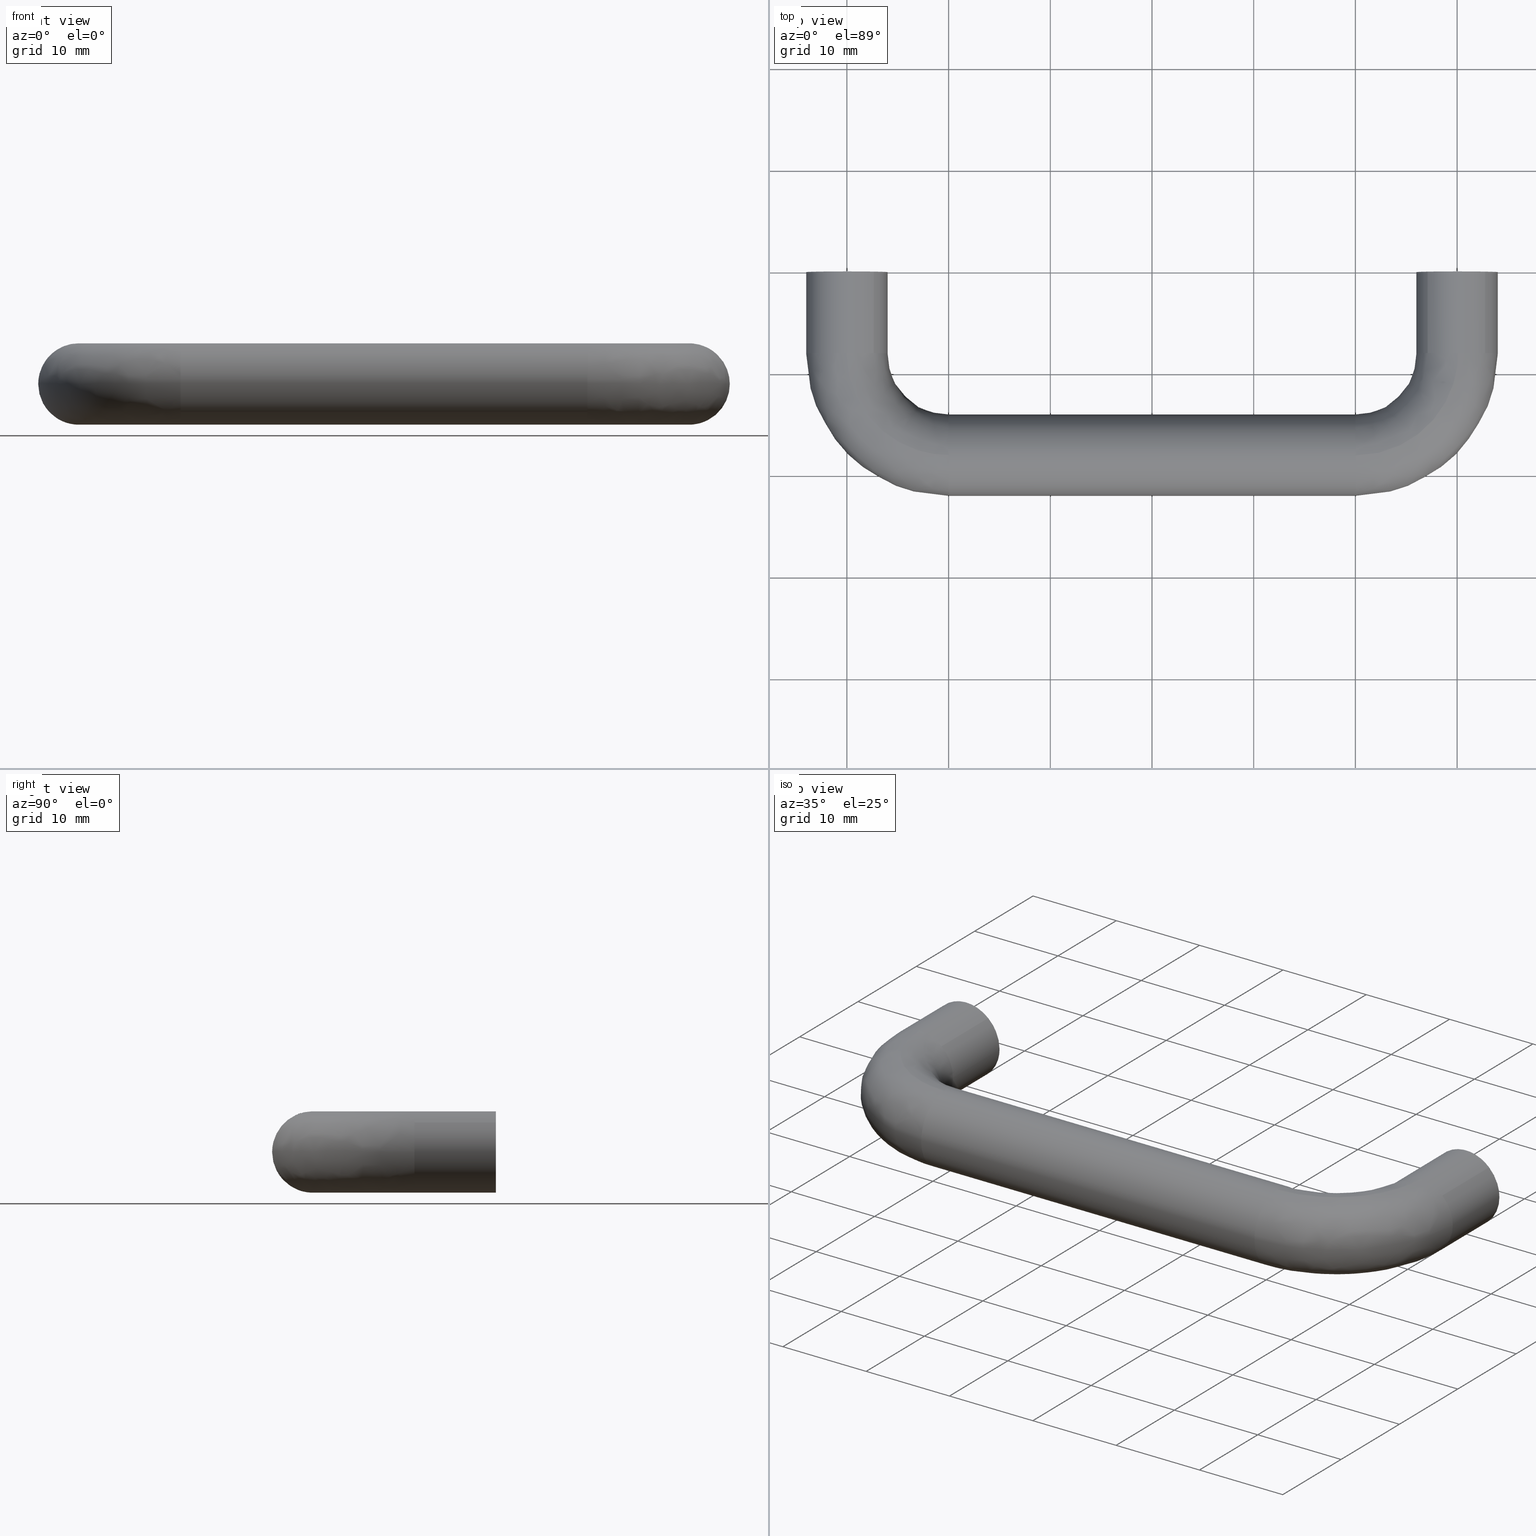
[diagram: canonical four-view strip — front | top / right | iso, engineering-drawing reading convention]
A machine part, canonical four-view strip (front | top / right | iso — engineering-drawing reading convention). The complete STEP part file that produces these views, byte-faithful:
ISO-10303-21;
HEADER;
/****************************************************************
 * Generated by software with PDE/Lib inside                    *
 * PDElib Version 4.4.1-0003, patched  Thursday August 19 11:58 *
 * International Technegroup Inc. (www.iti-oh.com)              *
 ****************************************************************/
FILE_DESCRIPTION((''),'2;1');
FILE_NAME('','2005-10-07T11:54:08',(''),(''),'','CADfix','');
FILE_SCHEMA(('AUTOMOTIVE_DESIGN'));
ENDSEC;
DATA;
#5=APPLICATION_CONTEXT('automotive design');
#6=APPLICATION_PROTOCOL_DEFINITION('Draft International Standard','automotive_design',1998,#5);
#7=PRODUCT_CONTEXT('None',#5,'mechanical');
#8=PRODUCT('pull','','None',(#7));
#9=PRODUCT_RELATED_PRODUCT_CATEGORY('part','description',(#8));
#10=PRODUCT_DEFINITION_FORMATION('None','None',#8);
#11=PRODUCT_DEFINITION_CONTEXT('part definition',#5,'design');
#12=PRODUCT_DEFINITION('None','None',#10,#11);
#18=(NAMED_UNIT(*)PLANE_ANGLE_UNIT()SI_UNIT($,.RADIAN.));
#19=DIMENSIONAL_EXPONENTS(0.0,0.0,0.0,0.0,0.0,0.0,0.0);
#20=PLANE_ANGLE_MEASURE_WITH_UNIT(PLANE_ANGLE_MEASURE(0.017453292500000),#18);
#24=(CONVERSION_BASED_UNIT('DEGREE',#20)NAMED_UNIT(#19)PLANE_ANGLE_UNIT());
#28=(NAMED_UNIT(*)SI_UNIT($,.STERADIAN.)SOLID_ANGLE_UNIT());
#32=(LENGTH_UNIT()NAMED_UNIT(*)SI_UNIT(.MILLI.,.METRE.));
#34=UNCERTAINTY_MEASURE_WITH_UNIT(LENGTH_MEASURE(0.001000000000000),#32,'DISTANCE_ACCURACY_VALUE','');
#36=(GEOMETRIC_REPRESENTATION_CONTEXT(3)GLOBAL_UNCERTAINTY_ASSIGNED_CONTEXT((#34))GLOBAL_UNIT_ASSIGNED_CONTEXT((#24,#28,#32))REPRESENTATION_CONTEXT('None','None'));
#37=AXIS2_PLACEMENT_3D('',#38,#39,#40);
#38=CARTESIAN_POINT('',(0.0,0.0,0.0));
#39=DIRECTION('',(0.0,0.0,1.0));
#40=DIRECTION('',(1.0,0.0,0.0));
#41=ADVANCED_BREP_SHAPE_REPRESENTATION('',(#37,#1351),#36);
#42=PRODUCT_DEFINITION_SHAPE('','',#12);
#43=SHAPE_DEFINITION_REPRESENTATION(#42,#41);
#44=CARTESIAN_POINT('',(-2.492293334332819,-10.250000000000000,0.196147739319614));
#45=CARTESIAN_POINT('',(-2.296145595013206,-10.250000000000002,2.688441073652433));
#46=CARTESIAN_POINT('',(0.196147739319614,-10.250000000000000,2.492293334332819));
#47=CARTESIAN_POINT('',(2.688441073652433,-10.250000000000002,2.296145595013206));
#48=CARTESIAN_POINT('',(2.492293334332819,-10.250000000000000,-0.196147739319614));
#49=CARTESIAN_POINT('',(-2.492293334332819,0.256250000000001,0.196147739319614));
#50=CARTESIAN_POINT('',(-2.296145595013206,0.256250000000001,2.688441073652433));
#51=CARTESIAN_POINT('',(0.196147739319614,0.256250000000001,2.492293334332819));
#52=CARTESIAN_POINT('',(2.688441073652433,0.256250000000001,2.296145595013206));
#53=CARTESIAN_POINT('',(2.492293334332819,0.256250000000001,-0.196147739319614));
#61=(BOUNDED_SURFACE()B_SPLINE_SURFACE(2,1,((#44,#49),(#45,#50),(#46,#51),(#47,#52),(#48,#53)),.UNSPECIFIED.,.F.,.F.,.U.)B_SPLINE_SURFACE_WITH_KNOTS((3,2,3),(2,2),(0.0,4.142135623730949,8.284271247461899),(0.0,10.506250000000000),.UNSPECIFIED.)GEOMETRIC_REPRESENTATION_ITEM()RATIONAL_B_SPLINE_SURFACE(((1.0,1.0),(0.707106781186548,0.707106781186548),(1.0,1.0),(0.707106781186548,0.707106781186548),(1.0,1.0)))REPRESENTATION_ITEM('')SURFACE());
#62=CARTESIAN_POINT('',(0.0,-10.0,2.500000000000000));
#63=VERTEX_POINT('',#62);
#64=CARTESIAN_POINT('',(-2.492293334326893,-10.0,0.196147739394916));
#65=VERTEX_POINT('',#64);
#66=CARTESIAN_POINT('',(0.0,-10.0,2.500000000000000));
#67=CARTESIAN_POINT('',(-2.310976229005435,-10.0,2.500000000000000));
#68=CARTESIAN_POINT('',(-2.492293334326893,-10.000000000000002,0.196147739394916));
#76=(BOUNDED_CURVE()B_SPLINE_CURVE(2,(#66,#67,#68),.UNSPECIFIED.,.F.,.U.)B_SPLINE_CURVE_WITH_KNOTS((3,3),(0.0,0.236331300622408),.UNSPECIFIED.)CURVE()GEOMETRIC_REPRESENTATION_ITEM()RATIONAL_B_SPLINE_CURVE((1.0,0.723120658617333,0.969723356150197))REPRESENTATION_ITEM(''));
#77=EDGE_CURVE('',#63,#65,#76,.T.);
#78=ORIENTED_EDGE('',*,*,#77,.T.);
#79=CARTESIAN_POINT('',(-2.492293334326893,-2.775558E-017,0.196147739394916));
#80=VERTEX_POINT('',#79);
#81=CARTESIAN_POINT('',(-2.492293334326893,-10.0,0.196147739394916));
#82=CARTESIAN_POINT('',(-2.492293334326893,-2.775558E-017,0.196147739394916));
#83=QUASI_UNIFORM_CURVE('',1,(#81,#82),.UNSPECIFIED.,.F.,.U.);
#84=EDGE_CURVE('',#65,#80,#83,.T.);
#85=ORIENTED_EDGE('',*,*,#84,.T.);
#86=CARTESIAN_POINT('',(0.0,0.0,2.500000000000000));
#87=VERTEX_POINT('',#86);
#88=CARTESIAN_POINT('',(0.0,0.0,2.500000000000000));
#89=CARTESIAN_POINT('',(-2.310976229005435,0.0,2.500000000000000));
#90=CARTESIAN_POINT('',(-2.492293334326893,-2.775558E-017,0.196147739394916));
#98=(BOUNDED_CURVE()B_SPLINE_CURVE(2,(#88,#89,#90),.UNSPECIFIED.,.F.,.U.)B_SPLINE_CURVE_WITH_KNOTS((3,3),(0.0,0.236331300622408),.UNSPECIFIED.)CURVE()GEOMETRIC_REPRESENTATION_ITEM()RATIONAL_B_SPLINE_CURVE((1.0,0.723120658617333,0.969723356150197))REPRESENTATION_ITEM(''));
#99=EDGE_CURVE('',#87,#80,#98,.T.);
#100=ORIENTED_EDGE('',*,*,#99,.F.);
#101=CARTESIAN_POINT('',(2.492293334326893,-2.775558E-017,-0.196147739394915));
#102=VERTEX_POINT('',#101);
#103=CARTESIAN_POINT('',(2.492293334326894,-2.775558E-017,-0.196147739394915));
#104=CARTESIAN_POINT('',(2.500000000000001,0.0,-0.098225267594826));
#105=CARTESIAN_POINT('',(2.500000000000000,0.0,0.0));
#106=CARTESIAN_POINT('',(2.500000000000000,0.0,2.500000000000000));
#107=CARTESIAN_POINT('',(0.0,0.0,2.500000000000000));
#115=(BOUNDED_CURVE()B_SPLINE_CURVE(2,(#103,#104,#105,#106,#107),.UNSPECIFIED.,.F.,.U.)B_SPLINE_CURVE_WITH_KNOTS((3,2,3),(0.736331300622408,0.750000000000000,1.0),.UNSPECIFIED.)CURVE()GEOMETRIC_REPRESENTATION_ITEM()RATIONAL_B_SPLINE_CURVE((0.969723356150197,0.983986122569215,1.0,0.707106781186548,1.0))REPRESENTATION_ITEM(''));
#116=EDGE_CURVE('',#102,#87,#115,.T.);
#117=ORIENTED_EDGE('',*,*,#116,.F.);
#118=CARTESIAN_POINT('',(2.492293334326893,-10.0,-0.196147739394915));
#119=VERTEX_POINT('',#118);
#120=CARTESIAN_POINT('',(2.492293334326893,-10.0,-0.196147739394915));
#121=CARTESIAN_POINT('',(2.492293334326893,-2.775558E-017,-0.196147739394915));
#122=QUASI_UNIFORM_CURVE('',1,(#120,#121),.UNSPECIFIED.,.F.,.U.);
#123=EDGE_CURVE('',#119,#102,#122,.T.);
#124=ORIENTED_EDGE('',*,*,#123,.F.);
#125=CARTESIAN_POINT('',(2.492293334326894,-10.0,-0.196147739394915));
#126=CARTESIAN_POINT('',(2.500000000000001,-10.000000000000002,-0.098225267594826));
#127=CARTESIAN_POINT('',(2.500000000000000,-10.0,0.0));
#128=CARTESIAN_POINT('',(2.500000000000000,-10.000000000000002,2.500000000000000));
#129=CARTESIAN_POINT('',(0.0,-10.0,2.500000000000000));
#137=(BOUNDED_CURVE()B_SPLINE_CURVE(2,(#125,#126,#127,#128,#129),.UNSPECIFIED.,.F.,.U.)B_SPLINE_CURVE_WITH_KNOTS((3,2,3),(0.736331300622408,0.750000000000000,1.0),.UNSPECIFIED.)CURVE()GEOMETRIC_REPRESENTATION_ITEM()RATIONAL_B_SPLINE_CURVE((0.969723356150197,0.983986122569215,1.0,0.707106781186548,1.0))REPRESENTATION_ITEM(''));
#138=EDGE_CURVE('',#119,#63,#137,.T.);
#139=ORIENTED_EDGE('',*,*,#138,.T.);
#140=EDGE_LOOP('',(#78,#85,#100,#117,#124,#139));
#141=FACE_OUTER_BOUND('',#140,.T.);
#142=ADVANCED_FACE('',(#141),#61,.F.);
#143=CARTESIAN_POINT('',(2.492293334332819,-10.250000000000000,-0.196147739319614));
#144=CARTESIAN_POINT('',(2.296145595013206,-10.250000000000002,-2.688441073652433));
#145=CARTESIAN_POINT('',(-0.196147739319614,-10.250000000000000,-2.492293334332819));
#146=CARTESIAN_POINT('',(-2.688441073652433,-10.250000000000002,-2.296145595013206));
#147=CARTESIAN_POINT('',(-2.492293334332819,-10.250000000000000,0.196147739319614));
#148=CARTESIAN_POINT('',(2.492293334332819,0.256250000000001,-0.196147739319614));
#149=CARTESIAN_POINT('',(2.296145595013206,0.256250000000001,-2.688441073652433));
#150=CARTESIAN_POINT('',(-0.196147739319614,0.256250000000001,-2.492293334332819));
#151=CARTESIAN_POINT('',(-2.688441073652433,0.256250000000001,-2.296145595013206));
#152=CARTESIAN_POINT('',(-2.492293334332819,0.256250000000001,0.196147739319614));
#160=(BOUNDED_SURFACE()B_SPLINE_SURFACE(2,1,((#143,#148),(#144,#149),(#145,#150),(#146,#151),(#147,#152)),.UNSPECIFIED.,.F.,.F.,.U.)B_SPLINE_SURFACE_WITH_KNOTS((3,2,3),(2,2),(0.0,4.142135623730949,8.284271247461899),(0.0,10.506250000000000),.UNSPECIFIED.)GEOMETRIC_REPRESENTATION_ITEM()RATIONAL_B_SPLINE_SURFACE(((1.0,1.0),(0.707106781186548,0.707106781186548),(1.0,1.0),(0.707106781186548,0.707106781186548),(1.0,1.0)))REPRESENTATION_ITEM('')SURFACE());
#161=CARTESIAN_POINT('',(0.0,-10.0,-2.500000000000000));
#162=VERTEX_POINT('',#161);
#163=CARTESIAN_POINT('',(-2.492293334326893,-10.0,0.196147739394916));
#164=CARTESIAN_POINT('',(-2.499999999999999,-9.999999999999998,0.098225267594826));
#165=CARTESIAN_POINT('',(-2.500000000000000,-10.0,0.0));
#166=CARTESIAN_POINT('',(-2.500000000000000,-10.000000000000002,-2.500000000000000));
#167=CARTESIAN_POINT('',(0.0,-10.0,-2.500000000000000));
#175=(BOUNDED_CURVE()B_SPLINE_CURVE(2,(#163,#164,#165,#166,#167),.UNSPECIFIED.,.F.,.U.)B_SPLINE_CURVE_WITH_KNOTS((3,2,3),(0.236331300622408,0.250000000000000,0.500000000000000),.UNSPECIFIED.)CURVE()GEOMETRIC_REPRESENTATION_ITEM()RATIONAL_B_SPLINE_CURVE((0.969723356150197,0.983986122569215,1.0,0.707106781186548,1.0))REPRESENTATION_ITEM(''));
#176=EDGE_CURVE('',#65,#162,#175,.T.);
#177=ORIENTED_EDGE('',*,*,#176,.T.);
#178=CARTESIAN_POINT('',(0.0,-10.0,-2.500000000000000));
#179=CARTESIAN_POINT('',(2.310976229005433,-10.0,-2.500000000000000));
#180=CARTESIAN_POINT('',(2.492293334326893,-10.0,-0.196147739394915));
#188=(BOUNDED_CURVE()B_SPLINE_CURVE(2,(#178,#179,#180),.UNSPECIFIED.,.F.,.U.)B_SPLINE_CURVE_WITH_KNOTS((3,3),(0.500000000000000,0.736331300622408),.UNSPECIFIED.)CURVE()GEOMETRIC_REPRESENTATION_ITEM()RATIONAL_B_SPLINE_CURVE((1.0,0.723120658617333,0.969723356150197))REPRESENTATION_ITEM(''));
#189=EDGE_CURVE('',#162,#119,#188,.T.);
#190=ORIENTED_EDGE('',*,*,#189,.T.);
#191=ORIENTED_EDGE('',*,*,#123,.T.);
#192=CARTESIAN_POINT('',(0.0,0.0,-2.500000000000000));
#193=VERTEX_POINT('',#192);
#194=CARTESIAN_POINT('',(0.0,0.0,-2.500000000000000));
#195=CARTESIAN_POINT('',(2.310976229005433,0.0,-2.500000000000000));
#196=CARTESIAN_POINT('',(2.492293334326893,-2.775558E-017,-0.196147739394915));
#204=(BOUNDED_CURVE()B_SPLINE_CURVE(2,(#194,#195,#196),.UNSPECIFIED.,.F.,.U.)B_SPLINE_CURVE_WITH_KNOTS((3,3),(0.500000000000000,0.736331300622408),.UNSPECIFIED.)CURVE()GEOMETRIC_REPRESENTATION_ITEM()RATIONAL_B_SPLINE_CURVE((1.0,0.723120658617333,0.969723356150197))REPRESENTATION_ITEM(''));
#205=EDGE_CURVE('',#193,#102,#204,.T.);
#206=ORIENTED_EDGE('',*,*,#205,.F.);
#207=CARTESIAN_POINT('',(-2.492293334326893,-2.775558E-017,0.196147739394916));
#208=CARTESIAN_POINT('',(-2.499999999999999,0.0,0.098225267594826));
#209=CARTESIAN_POINT('',(-2.500000000000000,0.0,0.0));
#210=CARTESIAN_POINT('',(-2.500000000000000,0.0,-2.500000000000000));
#211=CARTESIAN_POINT('',(0.0,0.0,-2.500000000000000));
#219=(BOUNDED_CURVE()B_SPLINE_CURVE(2,(#207,#208,#209,#210,#211),.UNSPECIFIED.,.F.,.U.)B_SPLINE_CURVE_WITH_KNOTS((3,2,3),(0.236331300622408,0.250000000000000,0.500000000000000),.UNSPECIFIED.)CURVE()GEOMETRIC_REPRESENTATION_ITEM()RATIONAL_B_SPLINE_CURVE((0.969723356150197,0.983986122569215,1.0,0.707106781186548,1.0))REPRESENTATION_ITEM(''));
#220=EDGE_CURVE('',#80,#193,#219,.T.);
#221=ORIENTED_EDGE('',*,*,#220,.F.);
#222=ORIENTED_EDGE('',*,*,#84,.F.);
#223=EDGE_LOOP('',(#177,#190,#191,#206,#221,#222));
#224=FACE_OUTER_BOUND('',#223,.T.);
#225=ADVANCED_FACE('',(#224),#160,.F.);
#226=CARTESIAN_POINT('',(57.507706665667179,-10.250000000000000,0.196147739319614));
#227=CARTESIAN_POINT('',(57.703854404986807,-10.250000000000002,2.688441073652433));
#228=CARTESIAN_POINT('',(60.196147739319613,-10.250000000000000,2.492293334332819));
#229=CARTESIAN_POINT('',(62.688441073652434,-10.250000000000002,2.296145595013206));
#230=CARTESIAN_POINT('',(62.492293334332821,-10.250000000000000,-0.196147739319614));
#231=CARTESIAN_POINT('',(57.507706665667179,0.256250000000001,0.196147739319614));
#232=CARTESIAN_POINT('',(57.703854404986807,0.256250000000001,2.688441073652433));
#233=CARTESIAN_POINT('',(60.196147739319613,0.256250000000001,2.492293334332819));
#234=CARTESIAN_POINT('',(62.688441073652434,0.256250000000001,2.296145595013206));
#235=CARTESIAN_POINT('',(62.492293334332821,0.256250000000001,-0.196147739319614));
#243=(BOUNDED_SURFACE()B_SPLINE_SURFACE(2,1,((#226,#231),(#227,#232),(#228,#233),(#229,#234),(#230,#235)),.UNSPECIFIED.,.F.,.F.,.U.)B_SPLINE_SURFACE_WITH_KNOTS((3,2,3),(2,2),(0.0,4.142135623730956,8.284271247461913),(0.0,10.506250000000000),.UNSPECIFIED.)GEOMETRIC_REPRESENTATION_ITEM()RATIONAL_B_SPLINE_SURFACE(((1.0,1.0),(0.707106781186548,0.707106781186548),(1.0,1.0),(0.707106781186548,0.707106781186548),(1.0,1.0)))REPRESENTATION_ITEM('')SURFACE());
#244=CARTESIAN_POINT('',(60.0,-10.0,2.500000000000000));
#245=VERTEX_POINT('',#244);
#246=CARTESIAN_POINT('',(57.507706665673098,-10.0,0.196147739394916));
#247=VERTEX_POINT('',#246);
#248=CARTESIAN_POINT('',(60.0,-10.0,2.500000000000000));
#249=CARTESIAN_POINT('',(57.689023770994559,-10.0,2.500000000000000));
#250=CARTESIAN_POINT('',(57.507706665673091,-10.000000000000002,0.196147739394916));
#258=(BOUNDED_CURVE()B_SPLINE_CURVE(2,(#248,#249,#250),.UNSPECIFIED.,.F.,.U.)B_SPLINE_CURVE_WITH_KNOTS((3,3),(0.0,0.236331300622408),.UNSPECIFIED.)CURVE()GEOMETRIC_REPRESENTATION_ITEM()RATIONAL_B_SPLINE_CURVE((1.0,0.723120658617333,0.969723356150197))REPRESENTATION_ITEM(''));
#259=EDGE_CURVE('',#245,#247,#258,.T.);
#260=ORIENTED_EDGE('',*,*,#259,.T.);
#261=CARTESIAN_POINT('',(57.507706665673112,-2.775558E-017,0.196147739394916));
#262=VERTEX_POINT('',#261);
#263=CARTESIAN_POINT('',(57.507706665673098,-10.0,0.196147739394916));
#264=CARTESIAN_POINT('',(57.507706665673112,-2.775558E-017,0.196147739394916));
#265=QUASI_UNIFORM_CURVE('',1,(#263,#264),.UNSPECIFIED.,.F.,.U.);
#266=EDGE_CURVE('',#247,#262,#265,.T.);
#267=ORIENTED_EDGE('',*,*,#266,.T.);
#268=CARTESIAN_POINT('',(60.0,0.0,2.500000000000000));
#269=VERTEX_POINT('',#268);
#270=CARTESIAN_POINT('',(60.0,0.0,2.500000000000000));
#271=CARTESIAN_POINT('',(57.689023770994552,0.0,2.500000000000000));
#272=CARTESIAN_POINT('',(57.507706665673098,-2.775558E-017,0.196147739394916));
#280=(BOUNDED_CURVE()B_SPLINE_CURVE(2,(#270,#271,#272),.UNSPECIFIED.,.F.,.U.)B_SPLINE_CURVE_WITH_KNOTS((3,3),(0.0,0.236331300622408),.UNSPECIFIED.)CURVE()GEOMETRIC_REPRESENTATION_ITEM()RATIONAL_B_SPLINE_CURVE((1.0,0.723120658617333,0.969723356150197))REPRESENTATION_ITEM(''));
#281=EDGE_CURVE('',#269,#262,#280,.T.);
#282=ORIENTED_EDGE('',*,*,#281,.F.);
#283=CARTESIAN_POINT('',(62.492293334326902,-2.775558E-017,-0.196147739394916));
#284=VERTEX_POINT('',#283);
#285=CARTESIAN_POINT('',(62.492293334326902,-2.775558E-017,-0.196147739394916));
#286=CARTESIAN_POINT('',(62.500000000000000,0.0,-0.098225267594827));
#287=CARTESIAN_POINT('',(62.500000000000000,0.0,0.0));
#288=CARTESIAN_POINT('',(62.500000000000000,0.0,2.500000000000000));
#289=CARTESIAN_POINT('',(60.0,0.0,2.500000000000000));
#297=(BOUNDED_CURVE()B_SPLINE_CURVE(2,(#285,#286,#287,#288,#289),.UNSPECIFIED.,.F.,.U.)B_SPLINE_CURVE_WITH_KNOTS((3,2,3),(0.736331300622408,0.750000000000000,1.0),.UNSPECIFIED.)CURVE()GEOMETRIC_REPRESENTATION_ITEM()RATIONAL_B_SPLINE_CURVE((0.969723356150197,0.983986122569214,1.0,0.707106781186548,1.0))REPRESENTATION_ITEM(''));
#298=EDGE_CURVE('',#284,#269,#297,.T.);
#299=ORIENTED_EDGE('',*,*,#298,.F.);
#300=CARTESIAN_POINT('',(62.492293334326902,-10.0,-0.196147739394915));
#301=VERTEX_POINT('',#300);
#302=CARTESIAN_POINT('',(62.492293334326902,-10.0,-0.196147739394915));
#303=CARTESIAN_POINT('',(62.492293334326902,-2.775558E-017,-0.196147739394916));
#304=QUASI_UNIFORM_CURVE('',1,(#302,#303),.UNSPECIFIED.,.F.,.U.);
#305=EDGE_CURVE('',#301,#284,#304,.T.);
#306=ORIENTED_EDGE('',*,*,#305,.F.);
#307=CARTESIAN_POINT('',(62.492293334326895,-10.0,-0.196147739394915));
#308=CARTESIAN_POINT('',(62.500000000000007,-10.000000000000002,-0.098225267594826));
#309=CARTESIAN_POINT('',(62.500000000000000,-10.0,0.0));
#310=CARTESIAN_POINT('',(62.500000000000000,-10.000000000000002,2.500000000000000));
#311=CARTESIAN_POINT('',(60.0,-10.0,2.500000000000000));
#319=(BOUNDED_CURVE()B_SPLINE_CURVE(2,(#307,#308,#309,#310,#311),.UNSPECIFIED.,.F.,.U.)B_SPLINE_CURVE_WITH_KNOTS((3,2,3),(0.736331300622408,0.750000000000000,1.0),.UNSPECIFIED.)CURVE()GEOMETRIC_REPRESENTATION_ITEM()RATIONAL_B_SPLINE_CURVE((0.969723356150197,0.983986122569215,1.0,0.707106781186548,1.0))REPRESENTATION_ITEM(''));
#320=EDGE_CURVE('',#301,#245,#319,.T.);
#321=ORIENTED_EDGE('',*,*,#320,.T.);
#322=EDGE_LOOP('',(#260,#267,#282,#299,#306,#321));
#323=FACE_OUTER_BOUND('',#322,.T.);
#324=ADVANCED_FACE('',(#323),#243,.F.);
#325=CARTESIAN_POINT('',(62.492293334332821,-10.250000000000000,-0.196147739319614));
#326=CARTESIAN_POINT('',(62.296145595013215,-10.250000000000002,-2.688441073652433));
#327=CARTESIAN_POINT('',(59.803852260680387,-10.250000000000000,-2.492293334332819));
#328=CARTESIAN_POINT('',(57.311558926347551,-10.250000000000002,-2.296145595013206));
#329=CARTESIAN_POINT('',(57.507706665667179,-10.250000000000000,0.196147739319614));
#330=CARTESIAN_POINT('',(62.492293334332821,0.256250000000001,-0.196147739319614));
#331=CARTESIAN_POINT('',(62.296145595013215,0.256250000000001,-2.688441073652433));
#332=CARTESIAN_POINT('',(59.803852260680387,0.256250000000001,-2.492293334332819));
#333=CARTESIAN_POINT('',(57.311558926347551,0.256250000000001,-2.296145595013206));
#334=CARTESIAN_POINT('',(57.507706665667179,0.256250000000001,0.196147739319614));
#342=(BOUNDED_SURFACE()B_SPLINE_SURFACE(2,1,((#325,#330),(#326,#331),(#327,#332),(#328,#333),(#329,#334)),.UNSPECIFIED.,.F.,.F.,.U.)B_SPLINE_SURFACE_WITH_KNOTS((3,2,3),(2,2),(0.0,4.142135623730956,8.284271247461913),(0.0,10.506250000000000),.UNSPECIFIED.)GEOMETRIC_REPRESENTATION_ITEM()RATIONAL_B_SPLINE_SURFACE(((1.0,1.0),(0.707106781186548,0.707106781186548),(1.0,1.0),(0.707106781186548,0.707106781186548),(1.0,1.0)))REPRESENTATION_ITEM('')SURFACE());
#343=CARTESIAN_POINT('',(60.0,-10.0,-2.500000000000000));
#344=VERTEX_POINT('',#343);
#345=CARTESIAN_POINT('',(57.507706665673091,-10.0,0.196147739394916));
#346=CARTESIAN_POINT('',(57.499999999999993,-9.999999999999998,0.098225267594826));
#347=CARTESIAN_POINT('',(57.499999999999993,-10.0,0.0));
#348=CARTESIAN_POINT('',(57.499999999999986,-10.000000000000002,-2.500000000000000));
#349=CARTESIAN_POINT('',(60.0,-10.0,-2.500000000000000));
#357=(BOUNDED_CURVE()B_SPLINE_CURVE(2,(#345,#346,#347,#348,#349),.UNSPECIFIED.,.F.,.U.)B_SPLINE_CURVE_WITH_KNOTS((3,2,3),(0.236331300622408,0.250000000000000,0.500000000000000),.UNSPECIFIED.)CURVE()GEOMETRIC_REPRESENTATION_ITEM()RATIONAL_B_SPLINE_CURVE((0.969723356150197,0.983986122569215,1.0,0.707106781186548,1.0))REPRESENTATION_ITEM(''));
#358=EDGE_CURVE('',#247,#344,#357,.T.);
#359=ORIENTED_EDGE('',*,*,#358,.T.);
#360=CARTESIAN_POINT('',(60.0,-10.0,-2.500000000000000));
#361=CARTESIAN_POINT('',(62.310976229005433,-10.0,-2.500000000000000));
#362=CARTESIAN_POINT('',(62.492293334326902,-10.0,-0.196147739394915));
#370=(BOUNDED_CURVE()B_SPLINE_CURVE(2,(#360,#361,#362),.UNSPECIFIED.,.F.,.U.)B_SPLINE_CURVE_WITH_KNOTS((3,3),(0.500000000000000,0.736331300622408),.UNSPECIFIED.)CURVE()GEOMETRIC_REPRESENTATION_ITEM()RATIONAL_B_SPLINE_CURVE((1.0,0.723120658617333,0.969723356150197))REPRESENTATION_ITEM(''));
#371=EDGE_CURVE('',#344,#301,#370,.T.);
#372=ORIENTED_EDGE('',*,*,#371,.T.);
#373=ORIENTED_EDGE('',*,*,#305,.T.);
#374=CARTESIAN_POINT('',(60.0,0.0,-2.500000000000000));
#375=VERTEX_POINT('',#374);
#376=CARTESIAN_POINT('',(60.0,0.0,-2.500000000000000));
#377=CARTESIAN_POINT('',(62.310976229005433,0.0,-2.500000000000000));
#378=CARTESIAN_POINT('',(62.492293334326902,-2.775558E-017,-0.196147739394916));
#386=(BOUNDED_CURVE()B_SPLINE_CURVE(2,(#376,#377,#378),.UNSPECIFIED.,.F.,.U.)B_SPLINE_CURVE_WITH_KNOTS((3,3),(0.500000000000000,0.736331300622408),.UNSPECIFIED.)CURVE()GEOMETRIC_REPRESENTATION_ITEM()RATIONAL_B_SPLINE_CURVE((1.0,0.723120658617333,0.969723356150197))REPRESENTATION_ITEM(''));
#387=EDGE_CURVE('',#375,#284,#386,.T.);
#388=ORIENTED_EDGE('',*,*,#387,.F.);
#389=CARTESIAN_POINT('',(57.507706665673105,-2.775558E-017,0.196147739394916));
#390=CARTESIAN_POINT('',(57.500000000000000,0.0,0.098225267594827));
#391=CARTESIAN_POINT('',(57.499999999999993,0.0,0.0));
#392=CARTESIAN_POINT('',(57.499999999999986,0.0,-2.500000000000000));
#393=CARTESIAN_POINT('',(60.0,0.0,-2.500000000000000));
#401=(BOUNDED_CURVE()B_SPLINE_CURVE(2,(#389,#390,#391,#392,#393),.UNSPECIFIED.,.F.,.U.)B_SPLINE_CURVE_WITH_KNOTS((3,2,3),(0.236331300622408,0.250000000000000,0.500000000000000),.UNSPECIFIED.)CURVE()GEOMETRIC_REPRESENTATION_ITEM()RATIONAL_B_SPLINE_CURVE((0.969723356150197,0.983986122569214,1.0,0.707106781186548,1.0))REPRESENTATION_ITEM(''));
#402=EDGE_CURVE('',#262,#375,#401,.T.);
#403=ORIENTED_EDGE('',*,*,#402,.F.);
#404=ORIENTED_EDGE('',*,*,#266,.F.);
#405=EDGE_LOOP('',(#359,#372,#373,#388,#403,#404));
#406=FACE_OUTER_BOUND('',#405,.T.);
#407=ADVANCED_FACE('',(#406),#342,.F.);
#408=CARTESIAN_POINT('',(62.753418302775017,-8.200000006410072,2.901497484049150));
#409=CARTESIAN_POINT('',(65.654915786824162,-8.200000006410072,0.148079181274134));
#410=CARTESIAN_POINT('',(62.901497484049152,-8.200000006410072,-2.753418302775015));
#411=CARTESIAN_POINT('',(60.148079181274120,-8.200000006410072,-5.654915786824165));
#412=CARTESIAN_POINT('',(57.246581697224983,-8.200000006410072,-2.901497484049150));
#413=CARTESIAN_POINT('',(54.345084213175845,-8.200000006410072,-0.148079181274134));
#414=CARTESIAN_POINT('',(57.098502515950848,-8.200000006410072,2.753418302775015));
#415=CARTESIAN_POINT('',(62.753418302775017,0.205000000160259,2.901497484049150));
#416=CARTESIAN_POINT('',(65.654915786824162,0.205000000160259,0.148079181274134));
#417=CARTESIAN_POINT('',(62.901497484049152,0.205000000160259,-2.753418302775015));
#418=CARTESIAN_POINT('',(60.148079181274120,0.205000000160259,-5.654915786824165));
#419=CARTESIAN_POINT('',(57.246581697224983,0.205000000160259,-2.901497484049150));
#420=CARTESIAN_POINT('',(54.345084213175845,0.205000000160260,-0.148079181274134));
#421=CARTESIAN_POINT('',(57.098502515950848,0.205000000160259,2.753418302775015));
#429=(BOUNDED_SURFACE()B_SPLINE_SURFACE(2,1,((#408,#415),(#409,#416),(#410,#417),(#411,#418),(#412,#419),(#413,#420),(#414,#421)),.UNSPECIFIED.,.F.,.F.,.U.)B_SPLINE_SURFACE_WITH_KNOTS((3,2,2,3),(2,2),(0.0,6.627416997969519,13.254833995939039,19.882250993908560),(0.0,8.405000006570331),.UNSPECIFIED.)GEOMETRIC_REPRESENTATION_ITEM()RATIONAL_B_SPLINE_SURFACE(((1.0,1.0),(0.707106781186548,0.707106781186548),(1.0,1.0),(0.707106781186548,0.707106781186548),(1.0,1.0),(0.707106781186548,0.707106781186548),(1.0,1.0)))REPRESENTATION_ITEM('')SURFACE());
#430=CARTESIAN_POINT('',(62.753417673530329,1.783296E-014,2.901498081179806));
#431=VERTEX_POINT('',#430);
#432=CARTESIAN_POINT('',(64.0,6.938894E-015,0.0));
#433=VERTEX_POINT('',#432);
#434=CARTESIAN_POINT('',(62.753417673530329,1.783296E-014,2.901498081179806));
#435=CARTESIAN_POINT('',(64.000000000000014,6.938894E-015,1.718536651466266));
#436=CARTESIAN_POINT('',(64.0,6.938894E-015,0.0));
#444=(BOUNDED_CURVE()B_SPLINE_CURVE(2,(#434,#435,#436),.UNSPECIFIED.,.F.,.U.)B_SPLINE_CURVE_WITH_KNOTS((3,3),(0.871049461201881,1.0),.UNSPECIFIED.)CURVE()GEOMETRIC_REPRESENTATION_ITEM()RATIONAL_B_SPLINE_CURVE((0.853699666216732,0.848925046494759,1.0))REPRESENTATION_ITEM(''));
#445=EDGE_CURVE('',#431,#433,#444,.T.);
#446=ORIENTED_EDGE('',*,*,#445,.F.);
#447=CARTESIAN_POINT('',(62.753417808765207,-8.000000001999243,2.901497951945548));
#448=VERTEX_POINT('',#447);
#449=CARTESIAN_POINT('',(62.753417808765207,-8.000000001999243,2.901497951945548));
#450=CARTESIAN_POINT('',(62.753417673530329,1.783296E-014,2.901498081179806));
#451=QUASI_UNIFORM_CURVE('',1,(#449,#450),.UNSPECIFIED.,.F.,.U.);
#452=EDGE_CURVE('',#448,#431,#451,.T.);
#453=ORIENTED_EDGE('',*,*,#452,.F.);
#454=CARTESIAN_POINT('',(64.0,-8.0,0.0));
#455=VERTEX_POINT('',#454);
#456=CARTESIAN_POINT('',(62.753417808765207,-8.000000001999243,2.901497951945548));
#457=CARTESIAN_POINT('',(64.0,-8.0,1.718536429025472));
#458=CARTESIAN_POINT('',(64.0,-8.0,0.0));
#466=(BOUNDED_CURVE()B_SPLINE_CURVE(2,(#456,#457,#458),.UNSPECIFIED.,.F.,.U.)B_SPLINE_CURVE_WITH_KNOTS((3,3),(0.871049475371173,1.0),.UNSPECIFIED.)CURVE()GEOMETRIC_REPRESENTATION_ITEM()RATIONAL_B_SPLINE_CURVE((0.853699665167448,0.848925063095118,1.0))REPRESENTATION_ITEM(''));
#467=EDGE_CURVE('',#448,#455,#466,.T.);
#468=ORIENTED_EDGE('',*,*,#467,.T.);
#469=CARTESIAN_POINT('',(59.899484552384273,-7.999991810552365,-3.998736881162301));
#470=VERTEX_POINT('',#469);
#471=CARTESIAN_POINT('',(64.0,-8.0,0.0));
#472=CARTESIAN_POINT('',(64.000000000000043,-7.999996006910996,-3.999999999998598));
#473=CARTESIAN_POINT('',(60.000000000000071,-7.999991912187178,-3.999999999997161));
#474=CARTESIAN_POINT('',(59.949734339754386,-7.999991860731179,-3.999999999997142));
#475=CARTESIAN_POINT('',(59.899484552384266,-7.999991810552365,-3.998736881162301));
#483=(BOUNDED_CURVE()B_SPLINE_CURVE(2,(#471,#472,#473,#474,#475),.UNSPECIFIED.,.F.,.U.)B_SPLINE_CURVE_WITH_KNOTS((3,2,3),(0.0,0.250000000000000,0.254419892319458),.UNSPECIFIED.)CURVE()GEOMETRIC_REPRESENTATION_ITEM()RATIONAL_B_SPLINE_CURVE((1.0,0.707106781186548,1.0,0.994821774046980,0.989826645702906))REPRESENTATION_ITEM(''));
#484=EDGE_CURVE('',#455,#470,#483,.T.);
#485=ORIENTED_EDGE('',*,*,#484,.T.);
#486=CARTESIAN_POINT('',(55.999999999999993,-8.0,0.0));
#487=VERTEX_POINT('',#486);
#488=CARTESIAN_POINT('',(59.899484552384266,-7.999991810552365,-3.998736881162301));
#489=CARTESIAN_POINT('',(56.000000000000028,-7.999995905276183,-3.900716319445861));
#490=CARTESIAN_POINT('',(55.999999999999993,-8.0,0.0));
#498=(BOUNDED_CURVE()B_SPLINE_CURVE(2,(#488,#489,#490),.UNSPECIFIED.,.F.,.U.)B_SPLINE_CURVE_WITH_KNOTS((3,3),(0.254419892319458,0.500000000000000),.UNSPECIFIED.)CURVE()GEOMETRIC_REPRESENTATION_ITEM()RATIONAL_B_SPLINE_CURVE((0.989826645702907,0.712285007139567,1.0))REPRESENTATION_ITEM(''));
#499=EDGE_CURVE('',#470,#487,#498,.T.);
#500=ORIENTED_EDGE('',*,*,#499,.T.);
#501=CARTESIAN_POINT('',(57.098501917460467,-8.000000000000021,2.753417672097480));
#502=VERTEX_POINT('',#501);
#503=CARTESIAN_POINT('',(55.999999999999993,-8.0,0.0));
#504=CARTESIAN_POINT('',(55.999999999999993,-8.0,1.595837176054672));
#505=CARTESIAN_POINT('',(57.098501917460474,-8.000000000000021,2.753417672097480));
#513=(BOUNDED_CURVE()B_SPLINE_CURVE(2,(#503,#504,#505),.UNSPECIFIED.,.F.,.U.)B_SPLINE_CURVE_WITH_KNOTS((3,3),(0.500000000000000,0.621049461052829),.UNSPECIFIED.)CURVE()GEOMETRIC_REPRESENTATION_ITEM()RATIONAL_B_SPLINE_CURVE((1.0,0.858181734866413,0.853699666227769))REPRESENTATION_ITEM(''));
#514=EDGE_CURVE('',#487,#502,#513,.T.);
#515=ORIENTED_EDGE('',*,*,#514,.T.);
#516=CARTESIAN_POINT('',(57.098501924671609,8.090750E-015,2.753417679696431));
#517=VERTEX_POINT('',#516);
#518=CARTESIAN_POINT('',(57.098501917460467,-8.000000000000021,2.753417672097480));
#519=CARTESIAN_POINT('',(57.098501924671609,8.090750E-015,2.753417679696431));
#520=QUASI_UNIFORM_CURVE('',1,(#518,#519),.UNSPECIFIED.,.F.,.U.);
#521=EDGE_CURVE('',#502,#517,#520,.T.);
#522=ORIENTED_EDGE('',*,*,#521,.T.);
#523=CARTESIAN_POINT('',(55.999999999999993,6.938894E-015,0.0));
#524=VERTEX_POINT('',#523);
#525=CARTESIAN_POINT('',(55.999999999999993,6.938894E-015,0.0));
#526=CARTESIAN_POINT('',(56.0,6.938894E-015,1.595837188198005));
#527=CARTESIAN_POINT('',(57.098501924671616,8.090750E-015,2.753417679696431));
#535=(BOUNDED_CURVE()B_SPLINE_CURVE(2,(#525,#526,#527),.UNSPECIFIED.,.F.,.U.)B_SPLINE_CURVE_WITH_KNOTS((3,3),(0.500000000000000,0.621049461843310),.UNSPECIFIED.)CURVE()GEOMETRIC_REPRESENTATION_ITEM()RATIONAL_B_SPLINE_CURVE((1.0,0.858181733940307,0.853699666169232))REPRESENTATION_ITEM(''));
#536=EDGE_CURVE('',#524,#517,#535,.T.);
#537=ORIENTED_EDGE('',*,*,#536,.F.);
#538=CARTESIAN_POINT('',(64.0,6.938894E-015,0.0));
#539=CARTESIAN_POINT('',(64.000000000000014,6.938894E-015,-4.000000000000000));
#540=CARTESIAN_POINT('',(60.0,6.938894E-015,-4.0));
#541=CARTESIAN_POINT('',(55.999999999999993,6.938894E-015,-4.000000000000000));
#542=CARTESIAN_POINT('',(55.999999999999993,6.938894E-015,0.0));
#550=(BOUNDED_CURVE()B_SPLINE_CURVE(2,(#538,#539,#540,#541,#542),.UNSPECIFIED.,.F.,.U.)B_SPLINE_CURVE_WITH_KNOTS((3,2,3),(0.0,0.250000000000000,0.500000000000000),.UNSPECIFIED.)CURVE()GEOMETRIC_REPRESENTATION_ITEM()RATIONAL_B_SPLINE_CURVE((1.0,0.707106781186548,1.0,0.707106781186548,1.0))REPRESENTATION_ITEM(''));
#551=EDGE_CURVE('',#433,#524,#550,.T.);
#552=ORIENTED_EDGE('',*,*,#551,.F.);
#553=EDGE_LOOP('',(#446,#453,#468,#485,#500,#515,#522,#537,#552));
#554=FACE_OUTER_BOUND('',#553,.T.);
#555=ADVANCED_FACE('',(#554),#429,.T.);
#556=CARTESIAN_POINT('',(57.098502515950848,-8.200000006410072,2.753418302775015));
#557=CARTESIAN_POINT('',(59.851920818725866,-8.200000006410072,5.654915786824165));
#558=CARTESIAN_POINT('',(62.753418302775017,-8.200000006410072,2.901497484049150));
#559=CARTESIAN_POINT('',(57.098502515950848,0.205000000160259,2.753418302775015));
#560=CARTESIAN_POINT('',(59.851920818725866,0.205000000160260,5.654915786824165));
#561=CARTESIAN_POINT('',(62.753418302775017,0.205000000160259,2.901497484049150));
#569=(BOUNDED_SURFACE()B_SPLINE_SURFACE(2,1,((#556,#559),(#557,#560),(#558,#561)),.UNSPECIFIED.,.F.,.F.,.U.)B_SPLINE_SURFACE_WITH_KNOTS((3,3),(2,2),(0.0,6.627416997969515),(0.0,8.405000006570331),.UNSPECIFIED.)GEOMETRIC_REPRESENTATION_ITEM()RATIONAL_B_SPLINE_SURFACE(((1.0,1.0),(0.707106781186548,0.707106781186548),(1.0,1.0)))REPRESENTATION_ITEM('')SURFACE());
#570=CARTESIAN_POINT('',(57.098501924671616,8.090750E-015,2.753417679696431));
#571=CARTESIAN_POINT('',(58.281463358603396,6.938894E-015,4.000000000000001));
#572=CARTESIAN_POINT('',(60.0,6.938894E-015,4.0));
#573=CARTESIAN_POINT('',(61.595837178344382,6.938894E-015,4.000000000000001));
#574=CARTESIAN_POINT('',(62.753417673530329,1.783296E-014,2.901498081179806));
#582=(BOUNDED_CURVE()B_SPLINE_CURVE(2,(#570,#571,#572,#573,#574),.UNSPECIFIED.,.F.,.U.)B_SPLINE_CURVE_WITH_KNOTS((3,2,3),(0.621049461843310,0.750000000000000,0.871049461201880),.UNSPECIFIED.)CURVE()GEOMETRIC_REPRESENTATION_ITEM()RATIONAL_B_SPLINE_CURVE((0.853699666169232,0.848925047246240,1.0,0.858181734691789,0.853699666216732))REPRESENTATION_ITEM(''));
#583=EDGE_CURVE('',#517,#431,#582,.T.);
#584=ORIENTED_EDGE('',*,*,#583,.F.);
#585=ORIENTED_EDGE('',*,*,#521,.F.);
#586=CARTESIAN_POINT('',(60.100520387876692,-8.000000006253728,3.998736756979773));
#587=VERTEX_POINT('',#586);
#588=CARTESIAN_POINT('',(57.098501917460482,-8.000000000000021,2.753417672097480));
#589=CARTESIAN_POINT('',(58.281463346193810,-8.0,4.0));
#590=CARTESIAN_POINT('',(60.0,-8.0,4.0));
#591=CARTESIAN_POINT('',(60.050268134599754,-8.0,4.000000000000001));
#592=CARTESIAN_POINT('',(60.100520387876692,-8.000000006253728,3.998736756979773));
#600=(BOUNDED_CURVE()B_SPLINE_CURVE(2,(#588,#589,#590,#591,#592),.UNSPECIFIED.,.F.,.U.)B_SPLINE_CURVE_WITH_KNOTS((3,2,3),(0.621049461052829,0.750000000000000,0.754420108764337),.UNSPECIFIED.)CURVE()GEOMETRIC_REPRESENTATION_ITEM()RATIONAL_B_SPLINE_CURVE((0.853699666227769,0.848925046320134,1.0,0.994821520466031,0.989826156474254))REPRESENTATION_ITEM(''));
#601=EDGE_CURVE('',#502,#587,#600,.T.);
#602=ORIENTED_EDGE('',*,*,#601,.T.);
#603=CARTESIAN_POINT('',(60.100520387876685,-8.000000006253728,3.998736756979774));
#604=CARTESIAN_POINT('',(61.637893561696416,-8.000000003788189,3.960090212702295));
#605=CARTESIAN_POINT('',(62.753417808765207,-8.000000001999243,2.901497951945548));
#613=(BOUNDED_CURVE()B_SPLINE_CURVE(2,(#603,#604,#605),.UNSPECIFIED.,.F.,.U.)B_SPLINE_CURVE_WITH_KNOTS((3,3),(0.754420108764336,0.871049475371174),.UNSPECIFIED.)CURVE()GEOMETRIC_REPRESENTATION_ITEM()RATIONAL_B_SPLINE_CURVE((0.989826156474256,0.858018056403918,0.853699665167448))REPRESENTATION_ITEM(''));
#614=EDGE_CURVE('',#587,#448,#613,.T.);
#615=ORIENTED_EDGE('',*,*,#614,.T.);
#616=ORIENTED_EDGE('',*,*,#452,.T.);
#617=EDGE_LOOP('',(#584,#585,#602,#615,#616));
#618=FACE_OUTER_BOUND('',#617,.T.);
#619=ADVANCED_FACE('',(#618),#569,.T.);
#620=CARTESIAN_POINT('',(8.999999999730878,-15.085145242384501,-2.739273944315588));
#621=CARTESIAN_POINT('',(8.999999999730877,-12.498302470239505,0.013379172849753));
#622=CARTESIAN_POINT('',(8.999999999730877,-15.098502515950850,2.753418302775015));
#623=CARTESIAN_POINT('',(8.999999999730877,-17.851920818725873,5.654915786824165));
#624=CARTESIAN_POINT('',(8.999999999730877,-20.753418302775010,2.901497484049150));
#625=CARTESIAN_POINT('',(8.999999999730877,-23.654915786824155,0.148079181274134));
#626=CARTESIAN_POINT('',(8.999999999730877,-20.901497484049148,-2.753418302775015));
#627=CARTESIAN_POINT('',(51.025000000731282,-15.085145242384492,-2.739273944315588));
#628=CARTESIAN_POINT('',(51.025000000731289,-12.498302470239500,0.013379172849753));
#629=CARTESIAN_POINT('',(51.025000000731282,-15.098502515950839,2.753418302775015));
#630=CARTESIAN_POINT('',(51.025000000731282,-17.851920818725858,5.654915786824165));
#631=CARTESIAN_POINT('',(51.025000000731282,-20.753418302775010,2.901497484049150));
#632=CARTESIAN_POINT('',(51.025000000731282,-23.654915786824155,0.148079181274134));
#633=CARTESIAN_POINT('',(51.025000000731282,-20.901497484049141,-2.753418302775015));
#641=(BOUNDED_SURFACE()B_SPLINE_SURFACE(2,1,((#620,#627),(#621,#628),(#622,#629),(#623,#630),(#624,#631),(#625,#632),(#626,#633)),.UNSPECIFIED.,.F.,.F.,.U.)B_SPLINE_SURFACE_WITH_KNOTS((3,2,2,3),(2,2),(0.0,6.362320318050738,12.989737316020260,19.617154313989779),(0.0,42.025000001000407),.UNSPECIFIED.)GEOMETRIC_REPRESENTATION_ITEM()RATIONAL_B_SPLINE_SURFACE(((0.977505800795127,0.977505800795127),(0.718822509939086,0.718822509939086),(1.0,1.0),(0.707106781186548,0.707106781186548),(1.0,1.0),(0.707106781186548,0.707106781186548),(1.0,1.0)))REPRESENTATION_ITEM('')SURFACE());
#642=CARTESIAN_POINT('',(50.000000000051983,-15.085144465333290,-2.739273117427020));
#643=VERTEX_POINT('',#642);
#644=CARTESIAN_POINT('',(50.0,-14.0,0.0));
#645=VERTEX_POINT('',#644);
#646=CARTESIAN_POINT('',(50.000000000051983,-15.085144465333292,-2.739273117427019));
#647=CARTESIAN_POINT('',(50.0,-13.999999999999998,-1.584572868463763));
#648=CARTESIAN_POINT('',(50.0,-14.0,0.0));
#656=(BOUNDED_CURVE()B_SPLINE_CURVE(2,(#646,#647,#648),.UNSPECIFIED.,.F.,.U.)B_SPLINE_CURVE_WITH_KNOTS((3,3),(0.379684533793850,0.500000000000000),.UNSPECIFIED.)CURVE()GEOMETRIC_REPRESENTATION_ITEM()RATIONAL_B_SPLINE_CURVE((0.853759070585715,0.859041663319358,1.0))REPRESENTATION_ITEM(''));
#657=EDGE_CURVE('',#643,#645,#656,.T.);
#658=ORIENTED_EDGE('',*,*,#657,.F.);
#659=CARTESIAN_POINT('',(9.999999999928459,-15.085144783316510,-2.739273455781886));
#660=VERTEX_POINT('',#659);
#661=CARTESIAN_POINT('',(9.999999999928459,-15.085144783316510,-2.739273455781886));
#662=CARTESIAN_POINT('',(50.000000000051983,-15.085144465333290,-2.739273117427020));
#663=QUASI_UNIFORM_CURVE('',1,(#661,#662),.UNSPECIFIED.,.F.,.U.);
#664=EDGE_CURVE('',#660,#643,#663,.T.);
#665=ORIENTED_EDGE('',*,*,#664,.F.);
#666=CARTESIAN_POINT('',(10.0,-14.0,0.0));
#667=VERTEX_POINT('',#666);
#668=CARTESIAN_POINT('',(9.999999999928459,-15.085144783316512,-2.739273455781886));
#669=CARTESIAN_POINT('',(10.0,-14.000000000000004,-1.584572749257046));
#670=CARTESIAN_POINT('',(10.0,-14.0,0.0));
#678=(BOUNDED_CURVE()B_SPLINE_CURVE(2,(#668,#669,#670),.UNSPECIFIED.,.F.,.U.)B_SPLINE_CURVE_WITH_KNOTS((3,3),(0.379684541569276,0.500000000000000),.UNSPECIFIED.)CURVE()GEOMETRIC_REPRESENTATION_ITEM()RATIONAL_B_SPLINE_CURVE((0.853759071268494,0.859041672428836,1.0))REPRESENTATION_ITEM(''));
#679=EDGE_CURVE('',#660,#667,#678,.T.);
#680=ORIENTED_EDGE('',*,*,#679,.T.);
#681=CARTESIAN_POINT('',(9.999999999977183,-18.050264159744199,3.999684176812615));
#682=VERTEX_POINT('',#681);
#683=CARTESIAN_POINT('',(10.0,-14.0,0.0));
#684=CARTESIAN_POINT('',(10.000000000000002,-13.999999999999998,4.000000000000000));
#685=CARTESIAN_POINT('',(10.0,-18.0,4.0));
#686=CARTESIAN_POINT('',(10.0,-18.025133072178356,4.0));
#687=CARTESIAN_POINT('',(9.999999999977183,-18.050264159744195,3.999684176812615));
#695=(BOUNDED_CURVE()B_SPLINE_CURVE(2,(#683,#684,#685,#686,#687),.UNSPECIFIED.,.F.,.U.)B_SPLINE_CURVE_WITH_KNOTS((3,2,3),(0.500000000000000,0.750000000000000,0.752215704096808),.UNSPECIFIED.)CURVE()GEOMETRIC_REPRESENTATION_ITEM()RATIONAL_B_SPLINE_CURVE((1.0,0.707106781186548,1.0,0.997404141180592,0.994854295601350))REPRESENTATION_ITEM(''));
#696=EDGE_CURVE('',#667,#682,#695,.T.);
#697=ORIENTED_EDGE('',*,*,#696,.T.);
#698=CARTESIAN_POINT('',(10.0,-22.0,0.0));
#699=VERTEX_POINT('',#698);
#700=CARTESIAN_POINT('',(9.999999999977183,-18.050264159744192,3.999684176812615));
#701=CARTESIAN_POINT('',(10.0,-22.0,3.950047719212881));
#702=CARTESIAN_POINT('',(10.0,-22.0,0.0));
#710=(BOUNDED_CURVE()B_SPLINE_CURVE(2,(#700,#701,#702),.UNSPECIFIED.,.F.,.U.)B_SPLINE_CURVE_WITH_KNOTS((3,3),(0.752215704096809,1.0),.UNSPECIFIED.)CURVE()GEOMETRIC_REPRESENTATION_ITEM()RATIONAL_B_SPLINE_CURVE((0.994854295601348,0.709702640005957,1.0))REPRESENTATION_ITEM(''));
#711=EDGE_CURVE('',#682,#699,#710,.T.);
#712=ORIENTED_EDGE('',*,*,#711,.T.);
#713=CARTESIAN_POINT('',(10.0,-20.901498075328391,-2.753417679696430));
#714=VERTEX_POINT('',#713);
#715=CARTESIAN_POINT('',(10.0,-22.0,0.0));
#716=CARTESIAN_POINT('',(10.000000000000002,-22.0,-1.595837188198000));
#717=CARTESIAN_POINT('',(10.0,-20.901498075328391,-2.753417679696430));
#725=(BOUNDED_CURVE()B_SPLINE_CURVE(2,(#715,#716,#717),.UNSPECIFIED.,.F.,.U.)B_SPLINE_CURVE_WITH_KNOTS((3,3),(0.0,0.121049461843310),.UNSPECIFIED.)CURVE()GEOMETRIC_REPRESENTATION_ITEM()RATIONAL_B_SPLINE_CURVE((1.0,0.858181733940307,0.853699666169231))REPRESENTATION_ITEM(''));
#726=EDGE_CURVE('',#699,#714,#725,.T.);
#727=ORIENTED_EDGE('',*,*,#726,.T.);
#728=CARTESIAN_POINT('',(50.000000000000007,-20.901498082715289,-2.753417671912254));
#729=VERTEX_POINT('',#728);
#730=CARTESIAN_POINT('',(10.0,-20.901498075328391,-2.753417679696430));
#731=CARTESIAN_POINT('',(50.000000000000007,-20.901498082715289,-2.753417671912254));
#732=QUASI_UNIFORM_CURVE('',1,(#730,#731),.UNSPECIFIED.,.F.,.U.);
#733=EDGE_CURVE('',#714,#729,#732,.T.);
#734=ORIENTED_EDGE('',*,*,#733,.T.);
#735=CARTESIAN_POINT('',(50.0,-22.0,0.0));
#736=VERTEX_POINT('',#735);
#737=CARTESIAN_POINT('',(50.0,-22.0,0.0));
#738=CARTESIAN_POINT('',(49.999999999999986,-22.0,-1.595837175758675));
#739=CARTESIAN_POINT('',(50.000000000000007,-20.901498082715289,-2.753417671912254));
#747=(BOUNDED_CURVE()B_SPLINE_CURVE(2,(#737,#738,#739),.UNSPECIFIED.,.F.,.U.)B_SPLINE_CURVE_WITH_KNOTS((3,3),(0.0,0.121049461033561),.UNSPECIFIED.)CURVE()GEOMETRIC_REPRESENTATION_ITEM()RATIONAL_B_SPLINE_CURVE((1.0,0.858181734888987,0.853699666229196))REPRESENTATION_ITEM(''));
#748=EDGE_CURVE('',#736,#729,#747,.T.);
#749=ORIENTED_EDGE('',*,*,#748,.F.);
#750=CARTESIAN_POINT('',(50.000000000706883,-18.100520384777500,3.998736757057681));
#751=VERTEX_POINT('',#750);
#752=CARTESIAN_POINT('',(50.000000000706876,-18.100520384777496,3.998736757057681));
#753=CARTESIAN_POINT('',(49.999999999999993,-21.999999999999996,3.900711498859729));
#754=CARTESIAN_POINT('',(50.0,-22.0,0.0));
#762=(BOUNDED_CURVE()B_SPLINE_CURVE(2,(#752,#753,#754),.UNSPECIFIED.,.F.,.U.)B_SPLINE_CURVE_WITH_KNOTS((3,3),(0.754420108493106,1.0),.UNSPECIFIED.)CURVE()GEOMETRIC_REPRESENTATION_ITEM()RATIONAL_B_SPLINE_CURVE((0.989826157087315,0.712285260402750,1.0))REPRESENTATION_ITEM(''));
#763=EDGE_CURVE('',#751,#736,#762,.T.);
#764=ORIENTED_EDGE('',*,*,#763,.F.);
#765=CARTESIAN_POINT('',(50.0,-14.0,0.0));
#766=CARTESIAN_POINT('',(50.0,-13.999999999999998,4.000000000000000));
#767=CARTESIAN_POINT('',(50.0,-18.0,4.0));
#768=CARTESIAN_POINT('',(49.999999999999993,-18.050268131499084,4.000000000000001));
#769=CARTESIAN_POINT('',(50.000000000706883,-18.100520384777493,3.998736757057680));
#777=(BOUNDED_CURVE()B_SPLINE_CURVE(2,(#765,#766,#767,#768,#769),.UNSPECIFIED.,.F.,.U.)B_SPLINE_CURVE_WITH_KNOTS((3,2,3),(0.500000000000000,0.750000000000000,0.754420108493105),.UNSPECIFIED.)CURVE()GEOMETRIC_REPRESENTATION_ITEM()RATIONAL_B_SPLINE_CURVE((1.0,0.707106781186548,1.0,0.994821520783799,0.989826157087317))REPRESENTATION_ITEM(''));
#778=EDGE_CURVE('',#645,#751,#777,.T.);
#779=ORIENTED_EDGE('',*,*,#778,.F.);
#780=EDGE_LOOP('',(#658,#665,#680,#697,#712,#727,#734,#749,#764,#779));
#781=FACE_OUTER_BOUND('',#780,.T.);
#782=ADVANCED_FACE('',(#781),#641,.T.);
#783=CARTESIAN_POINT('',(8.999999999730877,-20.901497484049148,-2.753418302775015));
#784=CARTESIAN_POINT('',(8.999999999730877,-18.148079181274134,-5.654915786824165));
#785=CARTESIAN_POINT('',(8.999999999730877,-15.246581697224981,-2.901497484049150));
#786=CARTESIAN_POINT('',(8.999999999730878,-15.163542085799127,-2.822695835172240));
#787=CARTESIAN_POINT('',(8.999999999730878,-15.085145242384501,-2.739273944315588));
#788=CARTESIAN_POINT('',(51.025000000731282,-20.901497484049141,-2.753418302775015));
#789=CARTESIAN_POINT('',(51.025000000731282,-18.148079181274124,-5.654915786824165));
#790=CARTESIAN_POINT('',(51.025000000731282,-15.246581697224981,-2.901497484049150));
#791=CARTESIAN_POINT('',(51.025000000731282,-15.163542085799119,-2.822695835172240));
#792=CARTESIAN_POINT('',(51.025000000731282,-15.085145242384492,-2.739273944315588));
#800=(BOUNDED_SURFACE()B_SPLINE_SURFACE(2,1,((#783,#788),(#784,#789),(#785,#790),(#786,#791),(#787,#792)),.UNSPECIFIED.,.F.,.F.,.U.)B_SPLINE_SURFACE_WITH_KNOTS((3,2,3),(2,2),(0.0,6.627416997969523,6.892513677888305),(0.0,42.025000001000407),.UNSPECIFIED.)GEOMETRIC_REPRESENTATION_ITEM()RATIONAL_B_SPLINE_SURFACE(((1.0,1.0),(0.707106781186548,0.707106781186548),(1.0,1.0),(0.988284271247462,0.988284271247462),(0.977505800795127,0.977505800795127)))REPRESENTATION_ITEM('')SURFACE());
#801=CARTESIAN_POINT('',(50.000000000186787,-17.899479618020539,-3.998736757128018));
#802=VERTEX_POINT('',#801);
#803=CARTESIAN_POINT('',(50.000000000186787,-17.899479618020539,-3.998736757128019));
#804=CARTESIAN_POINT('',(50.000000000106773,-16.229285357191880,-3.956751356332737));
#805=CARTESIAN_POINT('',(50.000000000051983,-15.085144465333292,-2.739273117427019));
#813=(BOUNDED_CURVE()B_SPLINE_CURVE(2,(#803,#804,#805),.UNSPECIFIED.,.F.,.U.)B_SPLINE_CURVE_WITH_KNOTS((3,3),(0.254420108248230,0.379684533793850),.UNSPECIFIED.)CURVE()GEOMETRIC_REPRESENTATION_ITEM()RATIONAL_B_SPLINE_CURVE((0.989826157640806,0.848259187943550,0.853759070585715))REPRESENTATION_ITEM(''));
#814=EDGE_CURVE('',#802,#643,#813,.T.);
#815=ORIENTED_EDGE('',*,*,#814,.F.);
#816=CARTESIAN_POINT('',(50.000000000000007,-20.901498082715289,-2.753417671912254));
#817=CARTESIAN_POINT('',(50.0,-19.718536654108682,-4.000000000000001));
#818=CARTESIAN_POINT('',(50.0,-18.0,-4.0));
#819=CARTESIAN_POINT('',(50.0,-17.949731871300280,-4.0));
#820=CARTESIAN_POINT('',(50.000000000186787,-17.899479618020539,-3.998736757128018));
#828=(BOUNDED_CURVE()B_SPLINE_CURVE(2,(#816,#817,#818,#819,#820),.UNSPECIFIED.,.F.,.U.)B_SPLINE_CURVE_WITH_KNOTS((3,2,3),(0.121049461033561,0.250000000000000,0.254420108248230),.UNSPECIFIED.)CURVE()GEOMETRIC_REPRESENTATION_ITEM()RATIONAL_B_SPLINE_CURVE((0.853699666229196,0.848925046297560,1.0,0.994821521070688,0.989826157640806))REPRESENTATION_ITEM(''));
#829=EDGE_CURVE('',#729,#802,#828,.T.);
#830=ORIENTED_EDGE('',*,*,#829,.F.);
#831=ORIENTED_EDGE('',*,*,#733,.F.);
#832=CARTESIAN_POINT('',(9.999999999754682,-17.721066993419509,-3.990262695342246));
#833=VERTEX_POINT('',#832);
#834=CARTESIAN_POINT('',(10.0,-20.901498075328398,-2.753417679696430));
#835=CARTESIAN_POINT('',(10.0,-19.718536641396604,-4.000000000000001));
#836=CARTESIAN_POINT('',(10.0,-18.0,-4.0));
#837=CARTESIAN_POINT('',(10.0,-17.860363536221410,-4.000000000000000));
#838=CARTESIAN_POINT('',(9.999999999754682,-17.721066993419505,-3.990262695342246));
#846=(BOUNDED_CURVE()B_SPLINE_CURVE(2,(#834,#835,#836,#837,#838),.UNSPECIFIED.,.F.,.U.)B_SPLINE_CURVE_WITH_KNOTS((3,2,3),(0.121049461843310,0.250000000000000,0.262166313488892),.UNSPECIFIED.)CURVE()GEOMETRIC_REPRESENTATION_ITEM()RATIONAL_B_SPLINE_CURVE((0.853699666169232,0.848925047246240,1.0,0.985746277124580,0.972879876336249))REPRESENTATION_ITEM(''));
#847=EDGE_CURVE('',#714,#833,#846,.T.);
#848=ORIENTED_EDGE('',*,*,#847,.T.);
#849=CARTESIAN_POINT('',(9.999999999754682,-17.721066993419505,-3.990262695342246));
#850=CARTESIAN_POINT('',(9.999999999857723,-16.158102708519760,-3.881006147368181));
#851=CARTESIAN_POINT('',(9.999999999928459,-15.085144783316508,-2.739273455781886));
#859=(BOUNDED_CURVE()B_SPLINE_CURVE(2,(#849,#850,#851),.UNSPECIFIED.,.F.,.U.)B_SPLINE_CURVE_WITH_KNOTS((3,3),(0.262166313488892,0.379684541569276),.UNSPECIFIED.)CURVE()GEOMETRIC_REPRESENTATION_ITEM()RATIONAL_B_SPLINE_CURVE((0.972879876336249,0.848599286016326,0.853759071268495))REPRESENTATION_ITEM(''));
#860=EDGE_CURVE('',#833,#660,#859,.T.);
#861=ORIENTED_EDGE('',*,*,#860,.T.);
#862=ORIENTED_EDGE('',*,*,#664,.T.);
#863=EDGE_LOOP('',(#815,#830,#831,#848,#861,#862));
#864=FACE_OUTER_BOUND('',#863,.T.);
#865=ADVANCED_FACE('',(#864),#800,.T.);
#866=CARTESIAN_POINT('',(2.635878288639743,0.200000000012068,3.008678388840790));
#867=CARTESIAN_POINT('',(-0.205377497417183,0.200000000012068,5.497879117877503));
#868=CARTESIAN_POINT('',(-2.853001796616727,0.200000000012068,2.803637057199401));
#869=CARTESIAN_POINT('',(-5.656638853816128,0.200000000012067,-0.049364739417326));
#870=CARTESIAN_POINT('',(-2.803637057199401,0.200000000012068,-2.853001796616727));
#871=CARTESIAN_POINT('',(2.635878288639744,-8.205000000495065,3.008678388840790));
#872=CARTESIAN_POINT('',(-0.205377497417182,-8.205000000495064,5.497879117877503));
#873=CARTESIAN_POINT('',(-2.853001796616726,-8.205000000495065,2.803637057199401));
#874=CARTESIAN_POINT('',(-5.656638853816128,-8.205000000495065,-0.049364739417326));
#875=CARTESIAN_POINT('',(-2.803637057199400,-8.205000000495065,-2.853001796616727));
#883=(BOUNDED_SURFACE()B_SPLINE_SURFACE(2,1,((#866,#871),(#867,#872),(#868,#873),(#869,#874),(#870,#875)),.UNSPECIFIED.,.F.,.F.,.U.)B_SPLINE_SURFACE_WITH_KNOTS((3,2,3),(2,2),(0.0,6.362320318050738,12.989737316020260),(0.0,8.405000000507135),.UNSPECIFIED.)GEOMETRIC_REPRESENTATION_ITEM()RATIONAL_B_SPLINE_SURFACE(((0.977505800795127,0.977505800795127),(0.718822509939086,0.718822509939086),(1.0,1.0),(0.707106781186548,0.707106781186548),(1.0,1.0)))REPRESENTATION_ITEM('')SURFACE());
#884=CARTESIAN_POINT('',(2.635878256833538,-8.0,3.008678416705945));
#885=VERTEX_POINT('',#884);
#886=CARTESIAN_POINT('',(-0.050264161491411,-8.000000000482695,3.999684176790658));
#887=VERTEX_POINT('',#886);
#888=CARTESIAN_POINT('',(2.635878256833538,-8.0,3.008678416705945));
#889=CARTESIAN_POINT('',(1.504351067536320,-8.0,4.000000000000000));
#890=CARTESIAN_POINT('',(9.796851E-016,-8.0,4.0));
#891=CARTESIAN_POINT('',(-0.025133073925801,-8.0,4.000000000000001));
#892=CARTESIAN_POINT('',(-0.050264161491411,-8.000000000482695,3.999684176790658));
#900=(BOUNDED_CURVE()B_SPLINE_CURVE(2,(#888,#889,#890,#891,#892),.UNSPECIFIED.,.F.,.U.)B_SPLINE_CURVE_WITH_KNOTS((3,2,3),(0.634954723269971,0.750000000000000,0.752215704250460),.UNSPECIFIED.)CURVE()GEOMETRIC_REPRESENTATION_ITEM()RATIONAL_B_SPLINE_CURVE((0.854482180908901,0.865216074357030,1.0,0.997404141000576,0.994854295247701))REPRESENTATION_ITEM(''));
#901=EDGE_CURVE('',#885,#887,#900,.T.);
#902=ORIENTED_EDGE('',*,*,#901,.F.);
#903=CARTESIAN_POINT('',(2.635878257225859,1.987600E-016,3.008678416362234));
#904=VERTEX_POINT('',#903);
#905=CARTESIAN_POINT('',(2.635878257225859,1.987600E-016,3.008678416362234));
#906=CARTESIAN_POINT('',(2.635878256833538,-8.0,3.008678416705945));
#907=QUASI_UNIFORM_CURVE('',1,(#905,#906),.UNSPECIFIED.,.F.,.U.);
#908=EDGE_CURVE('',#904,#885,#907,.T.);
#909=ORIENTED_EDGE('',*,*,#908,.F.);
#910=CARTESIAN_POINT('',(-4.0,0.0,0.0));
#911=VERTEX_POINT('',#910);
#912=CARTESIAN_POINT('',(2.635878257225860,1.987600E-016,3.008678416362234));
#913=CARTESIAN_POINT('',(1.504351068131682,0.0,4.000000000000001));
#914=CARTESIAN_POINT('',(0.0,0.0,4.0));
#915=CARTESIAN_POINT('',(-4.000000000000000,0.0,4.000000000000000));
#916=CARTESIAN_POINT('',(-4.0,0.0,0.0));
#924=(BOUNDED_CURVE()B_SPLINE_CURVE(2,(#912,#913,#914,#915,#916),.UNSPECIFIED.,.F.,.U.)B_SPLINE_CURVE_WITH_KNOTS((3,2,3),(0.634954723230578,0.750000000000000,1.0),.UNSPECIFIED.)CURVE()GEOMETRIC_REPRESENTATION_ITEM()RATIONAL_B_SPLINE_CURVE((0.854482180901550,0.865216074310877,1.0,0.707106781186548,1.0))REPRESENTATION_ITEM(''));
#925=EDGE_CURVE('',#904,#911,#924,.T.);
#926=ORIENTED_EDGE('',*,*,#925,.T.);
#927=CARTESIAN_POINT('',(-2.803636857988532,-1.249001E-016,-2.853001992380676));
#928=VERTEX_POINT('',#927);
#929=CARTESIAN_POINT('',(-4.0,0.0,0.0));
#930=CARTESIAN_POINT('',(-4.0,0.0,-1.677339535446148));
#931=CARTESIAN_POINT('',(-2.803636857988533,-1.249001E-016,-2.853001992380677));
#939=(BOUNDED_CURVE()B_SPLINE_CURVE(2,(#929,#930,#931),.UNSPECIFIED.,.F.,.U.)B_SPLINE_CURVE_WITH_KNOTS((3,3),(0.0,0.126316778663051),.UNSPECIFIED.)CURVE()GEOMETRIC_REPRESENTATION_ITEM()RATIONAL_B_SPLINE_CURVE((1.0,0.852010688428930,0.853569641771621))REPRESENTATION_ITEM(''));
#940=EDGE_CURVE('',#911,#928,#939,.T.);
#941=ORIENTED_EDGE('',*,*,#940,.T.);
#942=CARTESIAN_POINT('',(-2.803636855499414,-7.999996549036103,-2.853001994825821));
#943=VERTEX_POINT('',#942);
#944=CARTESIAN_POINT('',(-2.803636857988532,-1.249001E-016,-2.853001992380676));
#945=CARTESIAN_POINT('',(-2.803636855499414,-7.999996549036103,-2.853001994825821));
#946=QUASI_UNIFORM_CURVE('',1,(#944,#945),.UNSPECIFIED.,.F.,.U.);
#947=EDGE_CURVE('',#928,#943,#946,.T.);
#948=ORIENTED_EDGE('',*,*,#947,.T.);
#949=CARTESIAN_POINT('',(-3.999999999999999,-8.0,0.0));
#950=VERTEX_POINT('',#949);
#951=CARTESIAN_POINT('',(-3.999999999999999,-8.0,0.0));
#952=CARTESIAN_POINT('',(-4.000000000000053,-7.999998600445676,-1.677339539548950));
#953=CARTESIAN_POINT('',(-2.803636855499414,-7.999996549036104,-2.853001994825821));
#961=(BOUNDED_CURVE()B_SPLINE_CURVE(2,(#951,#952,#953),.UNSPECIFIED.,.F.,.U.)B_SPLINE_CURVE_WITH_KNOTS((3,3),(0.0,0.126316778926350),.UNSPECIFIED.)CURVE()GEOMETRIC_REPRESENTATION_ITEM()RATIONAL_B_SPLINE_CURVE((1.0,0.852010688120457,0.853569641778120))REPRESENTATION_ITEM(''));
#962=EDGE_CURVE('',#950,#943,#961,.T.);
#963=ORIENTED_EDGE('',*,*,#962,.F.);
#964=CARTESIAN_POINT('',(-0.050264161491411,-8.000000000482695,3.999684176790658));
#965=CARTESIAN_POINT('',(-4.0,-8.0,3.950047715761540));
#966=CARTESIAN_POINT('',(-3.999999999999999,-8.0,0.0));
#974=(BOUNDED_CURVE()B_SPLINE_CURVE(2,(#964,#965,#966),.UNSPECIFIED.,.F.,.U.)B_SPLINE_CURVE_WITH_KNOTS((3,3),(0.752215704250460,1.0),.UNSPECIFIED.)CURVE()GEOMETRIC_REPRESENTATION_ITEM()RATIONAL_B_SPLINE_CURVE((0.994854295247703,0.709702640185971,1.0))REPRESENTATION_ITEM(''));
#975=EDGE_CURVE('',#887,#950,#974,.T.);
#976=ORIENTED_EDGE('',*,*,#975,.F.);
#977=EDGE_LOOP('',(#902,#909,#926,#941,#948,#963,#976));
#978=FACE_OUTER_BOUND('',#977,.T.);
#979=ADVANCED_FACE('',(#978),#883,.T.);
#980=CARTESIAN_POINT('',(-2.803637057199401,0.200000000012068,-2.853001796616727));
#981=CARTESIAN_POINT('',(0.049364739417326,0.200000000012068,-5.656638853816128));
#982=CARTESIAN_POINT('',(2.853001796616727,0.200000000012068,-2.803637057199401));
#983=CARTESIAN_POINT('',(5.656638853816128,0.200000000012069,0.049364739417326));
#984=CARTESIAN_POINT('',(2.803637057199401,0.200000000012068,2.853001796616727));
#985=CARTESIAN_POINT('',(2.721985371512705,0.200000000012068,2.933240684669827));
#986=CARTESIAN_POINT('',(2.635878288639743,0.200000000012068,3.008678388840790));
#987=CARTESIAN_POINT('',(-2.803637057199400,-8.205000000495065,-2.853001796616727));
#988=CARTESIAN_POINT('',(0.049364739417327,-8.205000000495065,-5.656638853816128));
#989=CARTESIAN_POINT('',(2.853001796616728,-8.205000000495065,-2.803637057199401));
#990=CARTESIAN_POINT('',(5.656638853816129,-8.205000000495065,0.049364739417326));
#991=CARTESIAN_POINT('',(2.803637057199402,-8.205000000495065,2.853001796616727));
#992=CARTESIAN_POINT('',(2.721985371512706,-8.205000000495065,2.933240684669827));
#993=CARTESIAN_POINT('',(2.635878288639744,-8.205000000495065,3.008678388840790));
#1001=(BOUNDED_SURFACE()B_SPLINE_SURFACE(2,1,((#980,#987),(#981,#988),(#982,#989),(#983,#990),(#984,#991),(#985,#992),(#986,#993)),.UNSPECIFIED.,.F.,.F.,.U.)B_SPLINE_SURFACE_WITH_KNOTS((3,2,2,3),(2,2),(0.0,6.627416997969519,13.254833995939039,13.519930675857820),(0.0,8.405000000507135),.UNSPECIFIED.)GEOMETRIC_REPRESENTATION_ITEM()RATIONAL_B_SPLINE_SURFACE(((1.0,1.0),(0.707106781186548,0.707106781186548),(1.0,1.0),(0.707106781186548,0.707106781186548),(1.0,1.0),(0.988284271247462,0.988284271247462),(0.977505800795127,0.977505800795127)))REPRESENTATION_ITEM('')SURFACE());
#1002=CARTESIAN_POINT('',(4.000000000000001,-8.0,0.0));
#1003=VERTEX_POINT('',#1002);
#1004=CARTESIAN_POINT('',(4.000000000000001,-8.0,0.0));
#1005=CARTESIAN_POINT('',(4.000000000000001,-8.0,1.813582674391952));
#1006=CARTESIAN_POINT('',(2.635878256833538,-8.0,3.008678416705946));
#1014=(BOUNDED_CURVE()B_SPLINE_CURVE(2,(#1004,#1005,#1006),.UNSPECIFIED.,.F.,.U.)B_SPLINE_CURVE_WITH_KNOTS((3,3),(0.500000000000000,0.634954723269971),.UNSPECIFIED.)CURVE()GEOMETRIC_REPRESENTATION_ITEM()RATIONAL_B_SPLINE_CURVE((1.0,0.841890706829518,0.854482180908901))REPRESENTATION_ITEM(''));
#1015=EDGE_CURVE('',#1003,#885,#1014,.T.);
#1016=ORIENTED_EDGE('',*,*,#1015,.F.);
#1017=CARTESIAN_POINT('',(0.278927085149124,-7.999992841993045,-3.990263109262084));
#1018=VERTEX_POINT('',#1017);
#1019=CARTESIAN_POINT('',(0.278927085149124,-7.999992841993045,-3.990263109262085));
#1020=CARTESIAN_POINT('',(3.999999999999860,-7.999996420996522,-3.730152937742459));
#1021=CARTESIAN_POINT('',(4.000000000000001,-8.0,0.0));
#1029=(BOUNDED_CURVE()B_SPLINE_CURVE(2,(#1019,#1020,#1021),.UNSPECIFIED.,.F.,.U.)B_SPLINE_CURVE_WITH_KNOTS((3,3),(0.262166058259925,0.500000000000000),.UNSPECIFIED.)CURVE()GEOMETRIC_REPRESENTATION_ITEM()RATIONAL_B_SPLINE_CURVE((0.972880416168121,0.721360205042633,1.0))REPRESENTATION_ITEM(''));
#1030=EDGE_CURVE('',#1018,#1003,#1029,.T.);
#1031=ORIENTED_EDGE('',*,*,#1030,.F.);
#1032=CARTESIAN_POINT('',(-2.803636855499414,-7.999996549036104,-2.853001994825821));
#1033=CARTESIAN_POINT('',(-1.636442875590120,-7.999994547647625,-3.999999999996933));
#1034=CARTESIAN_POINT('',(-2.710222E-013,-7.999993083438938,-3.999999999996109));
#1035=CARTESIAN_POINT('',(0.139633492081325,-7.999992958501750,-3.999999999996039));
#1036=CARTESIAN_POINT('',(0.278927085149124,-7.999992841993045,-3.990263109262085));
#1044=(BOUNDED_CURVE()B_SPLINE_CURVE(2,(#1032,#1033,#1034,#1035,#1036),.UNSPECIFIED.,.F.,.U.)B_SPLINE_CURVE_WITH_KNOTS((3,2,3),(0.126316778926350,0.250000000000000,0.262166058259925),.UNSPECIFIED.)CURVE()GEOMETRIC_REPRESENTATION_ITEM()RATIONAL_B_SPLINE_CURVE((0.853569641778120,0.855096093066091,1.0,0.985746576143914,0.972880416168121))REPRESENTATION_ITEM(''));
#1045=EDGE_CURVE('',#943,#1018,#1044,.T.);
#1046=ORIENTED_EDGE('',*,*,#1045,.F.);
#1047=ORIENTED_EDGE('',*,*,#947,.F.);
#1048=CARTESIAN_POINT('',(4.0,0.0,0.0));
#1049=VERTEX_POINT('',#1048);
#1050=CARTESIAN_POINT('',(-2.803636857988532,-1.249001E-016,-2.853001992380677));
#1051=CARTESIAN_POINT('',(-1.636442879663937,0.0,-4.0));
#1052=CARTESIAN_POINT('',(0.0,0.0,-4.0));
#1053=CARTESIAN_POINT('',(4.000000000000000,0.0,-4.000000000000000));
#1054=CARTESIAN_POINT('',(4.0,0.0,0.0));
#1062=(BOUNDED_CURVE()B_SPLINE_CURVE(2,(#1050,#1051,#1052,#1053,#1054),.UNSPECIFIED.,.F.,.U.)B_SPLINE_CURVE_WITH_KNOTS((3,2,3),(0.126316778663051,0.250000000000000,0.500000000000000),.UNSPECIFIED.)CURVE()GEOMETRIC_REPRESENTATION_ITEM()RATIONAL_B_SPLINE_CURVE((0.853569641771621,0.855096092757617,1.0,0.707106781186548,1.0))REPRESENTATION_ITEM(''));
#1063=EDGE_CURVE('',#928,#1049,#1062,.T.);
#1064=ORIENTED_EDGE('',*,*,#1063,.T.);
#1065=CARTESIAN_POINT('',(4.0,0.0,0.0));
#1066=CARTESIAN_POINT('',(4.0,0.0,1.813582673763154));
#1067=CARTESIAN_POINT('',(2.635878257225859,1.987600E-016,3.008678416362234));
#1075=(BOUNDED_CURVE()B_SPLINE_CURVE(2,(#1065,#1066,#1067),.UNSPECIFIED.,.F.,.U.)B_SPLINE_CURVE_WITH_KNOTS((3,3),(0.500000000000000,0.634954723230578),.UNSPECIFIED.)CURVE()GEOMETRIC_REPRESENTATION_ITEM()RATIONAL_B_SPLINE_CURVE((1.0,0.841890706875669,0.854482180901550))REPRESENTATION_ITEM(''));
#1076=EDGE_CURVE('',#1049,#904,#1075,.T.);
#1077=ORIENTED_EDGE('',*,*,#1076,.T.);
#1078=ORIENTED_EDGE('',*,*,#908,.T.);
#1079=EDGE_LOOP('',(#1016,#1031,#1046,#1047,#1064,#1077,#1078));
#1080=FACE_OUTER_BOUND('',#1079,.T.);
#1081=ADVANCED_FACE('',(#1080),#1001,.T.);
#1082=CARTESIAN_POINT('',(49.295748593177862,-18.075938762150550,3.998736757133199));
#1083=CARTESIAN_POINT('',(60.881660808525631,-18.885728814430987,3.998736757133199));
#1084=CARTESIAN_POINT('',(60.076201286834710,-7.299514732625198,3.998736757133198));
#1085=CARTESIAN_POINT('',(49.574557593138316,-14.086933724000156,4.099257138906547));
#1086=CARTESIAN_POINT('',(56.573675139566710,-14.576132645802021,4.099257138906548));
#1087=CARTESIAN_POINT('',(56.087092316702176,-7.576832740075237,4.099257138906548));
#1088=CARTESIAN_POINT('',(49.581566303343592,-13.986657978512433,0.100520381773351));
#1089=CARTESIAN_POINT('',(56.465380848039423,-14.467797869478778,0.100520381773351));
#1090=CARTESIAN_POINT('',(55.986813958568710,-7.583803969659624,0.100520381773351));
#1091=CARTESIAN_POINT('',(49.588575013548834,-13.886382233024701,-3.898216375359846));
#1092=CARTESIAN_POINT('',(56.357086556512115,-14.359463093155533,-3.898216375359846));
#1093=CARTESIAN_POINT('',(55.886535600435231,-7.590775199244011,-3.898216375359846));
#1094=CARTESIAN_POINT('',(49.309766013588394,-17.875387271175097,-3.998736757133199));
#1095=CARTESIAN_POINT('',(60.665072225471079,-18.669059261784501,-3.998736757133199));
#1096=CARTESIAN_POINT('',(59.875644570567808,-7.313457191793973,-3.998736757133198));
#1104=(BOUNDED_SURFACE()B_SPLINE_SURFACE(2,2,((#1082,#1085,#1088,#1091,#1094),(#1083,#1086,#1089,#1092,#1095),(#1084,#1087,#1090,#1093,#1096)),.UNSPECIFIED.,.F.,.F.,.U.)B_SPLINE_SURFACE_WITH_KNOTS((3,3),(3,2,3),(0.0,18.406899792511769),(0.0,6.627416997969521,13.254833995939039),.UNSPECIFIED.)GEOMETRIC_REPRESENTATION_ITEM()RATIONAL_B_SPLINE_SURFACE(((0.916719248271871,0.648218396897274,0.916719248271871,0.648218396897274,0.916719248271871),(0.603246719825717,0.426559846317306,0.603246719825717,0.426559846317306,0.603246719825717),(0.921825697358838,0.651829201674453,0.921825697358838,0.651829201674453,0.921825697358838)))REPRESENTATION_ITEM('')SURFACE());
#1105=ORIENTED_EDGE('',*,*,#601,.F.);
#1106=ORIENTED_EDGE('',*,*,#514,.F.);
#1107=ORIENTED_EDGE('',*,*,#499,.F.);
#1108=CARTESIAN_POINT('',(50.000000000186787,-17.899479618020539,-3.998736757128019));
#1109=CARTESIAN_POINT('',(59.899490274660700,-17.899479617747975,-3.998736819145160));
#1110=CARTESIAN_POINT('',(59.899484552384266,-7.999991810552365,-3.998736881162300));
#1118=(BOUNDED_CURVE()B_SPLINE_CURVE(2,(#1108,#1109,#1110),.UNSPECIFIED.,.F.,.U.)B_SPLINE_CURVE_WITH_KNOTS((3,3),(-1.733067862694350,-0.253786818865084),.UNSPECIFIED.)CURVE()GEOMETRIC_REPRESENTATION_ITEM()RATIONAL_B_SPLINE_CURVE((0.889551170312059,0.630646694483035,0.894193826133788))REPRESENTATION_ITEM(''));
#1119=EDGE_CURVE('',#802,#470,#1118,.T.);
#1120=ORIENTED_EDGE('',*,*,#1119,.F.);
#1121=ORIENTED_EDGE('',*,*,#814,.T.);
#1122=ORIENTED_EDGE('',*,*,#657,.T.);
#1123=ORIENTED_EDGE('',*,*,#778,.T.);
#1124=CARTESIAN_POINT('',(50.000000000706876,-18.100520384777496,3.998736757057681));
#1125=CARTESIAN_POINT('',(60.100520369265880,-18.100520380359587,3.998736757133198));
#1126=CARTESIAN_POINT('',(60.100520387876678,-8.000000006253728,3.998736756979774));
#1134=(BOUNDED_CURVE()B_SPLINE_CURVE(2,(#1124,#1125,#1126),.UNSPECIFIED.,.F.,.U.)B_SPLINE_CURVE_WITH_KNOTS((3,3),(-1.733067862587692,-0.253787687740336),.UNSPECIFIED.)CURVE()GEOMETRIC_REPRESENTATION_ITEM()RATIONAL_B_SPLINE_CURVE((0.889551170274724,0.630646846572999,0.894193516538193))REPRESENTATION_ITEM(''));
#1135=EDGE_CURVE('',#751,#587,#1134,.T.);
#1136=ORIENTED_EDGE('',*,*,#1135,.T.);
#1137=EDGE_LOOP('',(#1105,#1106,#1107,#1120,#1121,#1122,#1123,#1136));
#1138=FACE_OUTER_BOUND('',#1137,.T.);
#1139=ADVANCED_FACE('',(#1138),#1104,.T.);
#1140=CARTESIAN_POINT('',(49.313746009331091,-17.818444263339330,-3.997301829668271));
#1141=CARTESIAN_POINT('',(60.603575772255859,-18.607539818702264,-3.997301829668273));
#1142=CARTESIAN_POINT('',(59.818700079104012,-7.317415903633189,-3.997301829668271));
#1143=CARTESIAN_POINT('',(49.311761912228832,-17.846831343161732,-3.998017165967396));
#1144=CARTESIAN_POINT('',(60.634232823798513,-18.638208331093502,-3.998017165967394));
#1145=CARTESIAN_POINT('',(59.847087898540792,-7.315442416927009,-3.998017165967394));
#1146=CARTESIAN_POINT('',(49.030957013627933,-21.864392309325492,-4.099257138906547));
#1147=CARTESIAN_POINT('',(64.973057894430013,-22.978655430413465,-4.099257138906548));
#1148=CARTESIAN_POINT('',(63.864753540700370,-7.036139184343932,-4.099257138906546));
#1149=CARTESIAN_POINT('',(49.023948303422671,-21.964668054813213,-0.100520381773350));
#1150=CARTESIAN_POINT('',(65.081352185957300,-23.086990206736708,-0.100520381773350));
#1151=CARTESIAN_POINT('',(63.965031898833821,-7.029167954759546,-0.100520381773350));
#1152=CARTESIAN_POINT('',(49.016939593217423,-22.064943800300938,3.898216375359850));
#1153=CARTESIAN_POINT('',(65.189646477484587,-23.195324983059944,3.898216375359849));
#1154=CARTESIAN_POINT('',(64.065310256967294,-7.022196725175158,3.898216375359849));
#1155=CARTESIAN_POINT('',(49.297778690148803,-18.046893548236412,3.999468677991512));
#1156=CARTESIAN_POINT('',(60.850292995224514,-18.854349274569731,3.999468677991511));
#1157=CARTESIAN_POINT('',(60.047155316158786,-7.301533973205642,3.999468677991511));
#1158=CARTESIAN_POINT('',(49.299796578313050,-18.018023009427818,4.000196197148616));
#1159=CARTESIAN_POINT('',(60.819113824916883,-18.823158448224365,4.000196197148616));
#1160=CARTESIAN_POINT('',(60.018284025139494,-7.303541070268653,4.000196197148616));
#1168=(BOUNDED_SURFACE()B_SPLINE_SURFACE(2,2,((#1140,#1143,#1146,#1149,#1152,#1155,#1158),(#1141,#1144,#1147,#1150,#1153,#1156,#1159),(#1142,#1145,#1148,#1151,#1154,#1157,#1160)),.UNSPECIFIED.,.F.,.F.,.U.)B_SPLINE_SURFACE_WITH_KNOTS((3,3),(3,1,2,1,3),(0.0,25.510897950889721),(0.0,0.067294671557552,6.694711669527080,13.322128667496610,13.390579874429029),.UNSPECIFIED.)GEOMETRIC_REPRESENTATION_ITEM()RATIONAL_B_SPLINE_SURFACE(((0.922171953786466,0.919445601029169,0.648218396897274,0.916719248271871,0.648218396897274,0.919492456498334,0.922265664724798),(0.606834870420412,0.605040795123065,0.426559846317306,0.603246719825717,0.426559846317306,0.605071628345050,0.606896536864383),(0.927308776363626,0.924567236861232,0.651829201674453,0.921825697358838,0.651829201674453,0.924614353331864,0.927403009304890)))REPRESENTATION_ITEM('')SURFACE());
#1169=ORIENTED_EDGE('',*,*,#467,.F.);
#1170=ORIENTED_EDGE('',*,*,#614,.F.);
#1171=ORIENTED_EDGE('',*,*,#1135,.F.);
#1172=ORIENTED_EDGE('',*,*,#763,.T.);
#1173=ORIENTED_EDGE('',*,*,#748,.T.);
#1174=ORIENTED_EDGE('',*,*,#829,.T.);
#1175=ORIENTED_EDGE('',*,*,#1119,.T.);
#1176=ORIENTED_EDGE('',*,*,#484,.F.);
#1177=EDGE_LOOP('',(#1169,#1170,#1171,#1172,#1173,#1174,#1175,#1176));
#1178=FACE_OUTER_BOUND('',#1177,.T.);
#1179=ADVANCED_FACE('',(#1178),#1168,.T.);
#1180=CARTESIAN_POINT('',(0.362759058552336,-7.328220084217699,-3.986037690130090));
#1181=CARTESIAN_POINT('',(-0.409692905576315,-18.409685187760218,-3.986037690130087));
#1182=CARTESIAN_POINT('',(10.671772770664438,-17.637241439507328,-3.986037690130088));
#1183=CARTESIAN_POINT('',(0.332525016635582,-7.326112570017734,-3.988156279814388));
#1184=CARTESIAN_POINT('',(-0.442350290979450,-18.442342548950961,-3.988156279814386));
#1185=CARTESIAN_POINT('',(10.673880262448675,-17.667475482986603,-3.988156279814387));
#1186=CARTESIAN_POINT('',(0.188541437608098,-7.316075955059079,-3.998245639552520));
#1187=CARTESIAN_POINT('',(-0.597874558788898,-18.597866701453658,-3.998245639552521));
#1188=CARTESIAN_POINT('',(10.683916770656896,-17.811459069455264,-3.998245639552520));
#1189=CARTESIAN_POINT('',(0.074349399755585,-7.308116009049880,-3.999684176815263));
#1190=CARTESIAN_POINT('',(-0.721219409615885,-18.721211460831963,-3.999684176815263));
#1191=CARTESIAN_POINT('',(10.691876632003321,-17.925651113209302,-3.999684176815263));
#1192=CARTESIAN_POINT('',(-3.915652775873313,-7.029986268203891,-4.049948336348672));
#1193=CARTESIAN_POINT('',(-5.031031480646149,-23.031020336538660,-4.049948336348671));
#1194=CARTESIAN_POINT('',(10.970003414633782,-21.915653495044438,-4.049948336348672));
#1195=CARTESIAN_POINT('',(-3.965795261386791,-7.026491002816214,-0.050264159533408));
#1196=CARTESIAN_POINT('',(-5.085193027388509,-23.085181843125294,-0.050264159533408));
#1197=CARTESIAN_POINT('',(10.973498642845470,-21.965795983149324,-0.050264159533408));
#1198=CARTESIAN_POINT('',(-4.015937746900272,-7.022995737428533,3.949420017281855));
#1199=CARTESIAN_POINT('',(-5.139354574130874,-23.139343349711918,3.949420017281855));
#1200=CARTESIAN_POINT('',(10.976993871057159,-22.015938471254195,3.949420017281855));
#1201=CARTESIAN_POINT('',(0.003379571743219,-7.303168939097503,4.000053475116461));
#1202=CARTESIAN_POINT('',(-0.797877668930852,-18.797869663311985,4.000053475116459));
#1203=CARTESIAN_POINT('',(10.696823649338167,-17.996620944889447,4.000053475116459));
#1204=CARTESIAN_POINT('',(0.032516827215180,-7.305199999973329,4.000420532474561));
#1205=CARTESIAN_POINT('',(-0.766404980490537,-18.766396998205721,4.000420532474562));
#1206=CARTESIAN_POINT('',(10.694792610064908,-17.967483687911653,4.000420532474561));
#1214=(BOUNDED_SURFACE()B_SPLINE_SURFACE(2,2,((#1180,#1183,#1186,#1189,#1192,#1195,#1198,#1201,#1204),(#1181,#1184,#1187,#1190,#1193,#1196,#1199,#1202,#1205),(#1182,#1185,#1188,#1191,#1194,#1197,#1200,#1203,#1206)),.UNSPECIFIED.,.F.,.F.,.U.)B_SPLINE_SURFACE_WITH_KNOTS((3,3),(3,1,2,2,1,3),(0.0,25.512674355220089),(0.0,0.068988752659974,0.334085179762860,6.961502177732383,13.588919175701911,13.657991151437541),.UNSPECIFIED.)GEOMETRIC_REPRESENTATION_ITEM()RATIONAL_B_SPLINE_SURFACE(((0.896248106684243,0.898834768799030,0.911360947984552,0.922164769991582,0.652068962232381,0.922164769991582,0.652068962232381,0.924979750712662,0.927794731433741),(0.588139987186060,0.589837418301060,0.598057404274496,0.605147137228335,0.427903644349782,0.605147137228335,0.427903644349782,0.606994396612067,0.608841655995799),(0.896247803949265,0.898834465190328,0.911360640144753,0.922164458502465,0.652068741976314,0.922164458502465,0.652068741976314,0.924979438272700,0.927794418042934)))REPRESENTATION_ITEM('')SURFACE());
#1215=ORIENTED_EDGE('',*,*,#847,.F.);
#1216=ORIENTED_EDGE('',*,*,#726,.F.);
#1217=ORIENTED_EDGE('',*,*,#711,.F.);
#1218=CARTESIAN_POINT('',(-0.050264161491411,-8.000000000482695,3.999684176790658));
#1219=CARTESIAN_POINT('',(-0.050264158568014,-18.050264159487760,3.999684176815263));
#1220=CARTESIAN_POINT('',(9.999999999977183,-18.050264159744199,3.999684176812615));
#1228=(BOUNDED_CURVE()B_SPLINE_CURVE(2,(#1218,#1219,#1220),.UNSPECIFIED.,.F.,.U.)B_SPLINE_CURVE_WITH_KNOTS((3,3),(-1.744561813214446,-0.255438186689191),.UNSPECIFIED.)CURVE()GEOMETRIC_REPRESENTATION_ITEM()RATIONAL_B_SPLINE_CURVE((0.894678510006817,0.632633241451508,0.894678510040732))REPRESENTATION_ITEM(''));
#1229=EDGE_CURVE('',#887,#682,#1228,.T.);
#1230=ORIENTED_EDGE('',*,*,#1229,.F.);
#1231=ORIENTED_EDGE('',*,*,#975,.T.);
#1232=ORIENTED_EDGE('',*,*,#962,.T.);
#1233=ORIENTED_EDGE('',*,*,#1045,.T.);
#1234=CARTESIAN_POINT('',(0.278927085149124,-7.999992841993045,-3.990263109262084));
#1235=CARTESIAN_POINT('',(0.278922887841558,-17.721066993066049,-3.990262902302166));
#1236=CARTESIAN_POINT('',(9.999999999754682,-17.721066993419505,-3.990262695342245));
#1244=(BOUNDED_CURVE()B_SPLINE_CURVE(2,(#1234,#1235,#1236),.UNSPECIFIED.,.F.,.U.)B_SPLINE_CURVE_WITH_KNOTS((3,3),(-1.744562588658354,-0.255438186737555),.UNSPECIFIED.)CURVE()GEOMETRIC_REPRESENTATION_ITEM()RATIONAL_B_SPLINE_CURVE((0.874553700153646,0.618402529915441,0.874553433394918))REPRESENTATION_ITEM(''));
#1245=EDGE_CURVE('',#1018,#833,#1244,.T.);
#1246=ORIENTED_EDGE('',*,*,#1245,.T.);
#1247=EDGE_LOOP('',(#1215,#1216,#1217,#1230,#1231,#1232,#1233,#1246));
#1248=FACE_OUTER_BOUND('',#1247,.T.);
#1249=ADVANCED_FACE('',(#1248),#1214,.T.);
#1250=CARTESIAN_POINT('',(-0.080918568354458,-7.297292796973479,3.998991527033293));
#1251=CARTESIAN_POINT('',(-0.888932542027782,-18.888924468900200,3.998991527033294));
#1252=CARTESIAN_POINT('',(10.702699728962964,-18.080919089343713,3.998991527033292));
#1253=CARTESIAN_POINT('',(-0.053505754323042,-7.299203652789294,3.999336860694050));
#1254=CARTESIAN_POINT('',(-0.859322513859093,-18.859314462684591,3.999336860694049));
#1255=CARTESIAN_POINT('',(10.700788893471199,-18.053506273895586,3.999336860694049));
#1256=CARTESIAN_POINT('',(3.964066604357523,-7.579255219120508,4.049948336348670));
#1257=CARTESIAN_POINT('',(3.480269567929651,-14.519725598298511,4.049948336348671));
#1258=CARTESIAN_POINT('',(10.420740305796246,-14.035933707583936,4.049948336348670));
#1259=CARTESIAN_POINT('',(4.014209089871003,-7.582750484508186,0.050264159533408));
#1260=CARTESIAN_POINT('',(3.534431114672013,-14.465564091711876,0.050264159533408));
#1261=CARTESIAN_POINT('',(10.417245077584553,-13.985791219479049,0.050264159533408));
#1262=CARTESIAN_POINT('',(4.061561318550832,-7.586051250400407,-3.726851351358789));
#1263=CARTESIAN_POINT('',(3.585578757648511,-14.414416486656586,-3.726851351358791));
#1264=CARTESIAN_POINT('',(10.413944346799605,-13.938438988352024,-3.726851351358790));
#1265=CARTESIAN_POINT('',(0.274318848765906,-7.322055212233793,-3.992234961535434));
#1266=CARTESIAN_POINT('',(-0.505221846896234,-18.505214058254346,-3.992234961535432));
#1267=CARTESIAN_POINT('',(10.677937577078152,-17.725681653864413,-3.992234961535432));
#1268=CARTESIAN_POINT('',(0.246324258022713,-7.320103802704232,-3.994196627738777));
#1269=CARTESIAN_POINT('',(-0.535460282816271,-18.535452471755416,-3.994196627738777));
#1270=CARTESIAN_POINT('',(10.679888965852330,-17.753676246054390,-3.994196627738777));
#1278=(BOUNDED_SURFACE()B_SPLINE_SURFACE(2,2,((#1250,#1253,#1256,#1259,#1262,#1265,#1268),(#1251,#1254,#1257,#1260,#1263,#1266,#1269),(#1252,#1255,#1258,#1261,#1264,#1267,#1270)),.UNSPECIFIED.,.F.,.F.,.U.)B_SPLINE_SURFACE_WITH_KNOTS((3,3),(3,1,2,1,3),(0.0,18.415792858356699),(0.0,0.064948721421819,6.692365719391337,13.054686037442080,13.119641554137910),.UNSPECIFIED.)GEOMETRIC_REPRESENTATION_ITEM()RATIONAL_B_SPLINE_SURFACE(((0.927458650663563,0.924811710327573,0.652068962232381,0.922164769991582,0.662872794542749,0.903856851846555,0.906292291737435),(0.608621111552367,0.606884124390351,0.427903644349782,0.605147137228335,0.434993384064924,0.593133032358361,0.594731227741461),(0.927458337386277,0.924811397944371,0.652068741976314,0.922164458502465,0.662872570637360,0.903856546541493,0.906291985609728)))REPRESENTATION_ITEM('')SURFACE());
#1279=ORIENTED_EDGE('',*,*,#679,.F.);
#1280=ORIENTED_EDGE('',*,*,#860,.F.);
#1281=ORIENTED_EDGE('',*,*,#1245,.F.);
#1282=ORIENTED_EDGE('',*,*,#1030,.T.);
#1283=ORIENTED_EDGE('',*,*,#1015,.T.);
#1284=ORIENTED_EDGE('',*,*,#901,.T.);
#1285=ORIENTED_EDGE('',*,*,#1229,.T.);
#1286=ORIENTED_EDGE('',*,*,#696,.F.);
#1287=EDGE_LOOP('',(#1279,#1280,#1281,#1282,#1283,#1284,#1285,#1286));
#1288=FACE_OUTER_BOUND('',#1287,.T.);
#1289=ADVANCED_FACE('',(#1288),#1278,.T.);
#1290=CARTESIAN_POINT('',(-2.748986881816960,-10.0,2.749749990309030));
#1291=CARTESIAN_POINT('',(2.748987015927410,-10.0,2.749749990309030));
#1292=CARTESIAN_POINT('',(-2.748986881816960,-10.0,-2.749750124419481));
#1293=CARTESIAN_POINT('',(2.748987015927410,-10.0,-2.749750124419481));
#1294=B_SPLINE_SURFACE_WITH_KNOTS('',1,1,((#1290,#1292),(#1291,#1293)),.UNSPECIFIED.,.F.,.F.,.U.,(2,2),(2,2),(0.0,5.497973897744370),(0.0,5.499500114728511),.UNSPECIFIED.);
#1295=ORIENTED_EDGE('',*,*,#138,.F.);
#1296=ORIENTED_EDGE('',*,*,#189,.F.);
#1297=ORIENTED_EDGE('',*,*,#176,.F.);
#1298=ORIENTED_EDGE('',*,*,#77,.F.);
#1299=EDGE_LOOP('',(#1295,#1296,#1297,#1298));
#1300=FACE_OUTER_BOUND('',#1299,.T.);
#1301=ADVANCED_FACE('',(#1300),#1294,.T.);
#1302=CARTESIAN_POINT('',(57.251013623274282,-10.0,2.749749990309030));
#1303=CARTESIAN_POINT('',(62.748986242615260,-10.0,2.749749990309030));
#1304=CARTESIAN_POINT('',(57.251013623274282,-10.0,-2.749750124419481));
#1305=CARTESIAN_POINT('',(62.748986242615260,-10.0,-2.749750124419481));
#1306=B_SPLINE_SURFACE_WITH_KNOTS('',1,1,((#1302,#1304),(#1303,#1305)),.UNSPECIFIED.,.F.,.F.,.U.,(2,2),(2,2),(0.0,5.497972619340985),(0.0,5.499500114728511),.UNSPECIFIED.);
#1307=ORIENTED_EDGE('',*,*,#320,.F.);
#1308=ORIENTED_EDGE('',*,*,#371,.F.);
#1309=ORIENTED_EDGE('',*,*,#358,.F.);
#1310=ORIENTED_EDGE('',*,*,#259,.F.);
#1311=EDGE_LOOP('',(#1307,#1308,#1309,#1310));
#1312=FACE_OUTER_BOUND('',#1311,.T.);
#1313=ADVANCED_FACE('',(#1312),#1306,.T.);
#1314=CARTESIAN_POINT('',(55.600400015505542,6.938894E-015,-4.399531560097867));
#1315=CARTESIAN_POINT('',(64.399600199071159,6.938894E-015,-4.399531560097867));
#1316=CARTESIAN_POINT('',(55.600400015505542,6.938894E-015,4.398161916886504));
#1317=CARTESIAN_POINT('',(64.399600199071159,6.938894E-015,4.398161916886504));
#1318=B_SPLINE_SURFACE_WITH_KNOTS('',1,1,((#1314,#1316),(#1315,#1317)),.UNSPECIFIED.,.F.,.F.,.U.,(2,2),(2,2),(0.0,8.799200183565617),(0.0,8.797693476984371),.UNSPECIFIED.);
#1319=ORIENTED_EDGE('',*,*,#551,.T.);
#1320=ORIENTED_EDGE('',*,*,#536,.T.);
#1321=ORIENTED_EDGE('',*,*,#583,.T.);
#1322=ORIENTED_EDGE('',*,*,#445,.T.);
#1323=EDGE_LOOP('',(#1319,#1320,#1321,#1322));
#1324=FACE_OUTER_BOUND('',#1323,.T.);
#1325=ORIENTED_EDGE('',*,*,#387,.T.);
#1326=ORIENTED_EDGE('',*,*,#298,.T.);
#1327=ORIENTED_EDGE('',*,*,#281,.T.);
#1328=ORIENTED_EDGE('',*,*,#402,.T.);
#1329=EDGE_LOOP('',(#1325,#1326,#1327,#1328));
#1330=FACE_BOUND('',#1329,.T.);
#1331=ADVANCED_FACE('',(#1324,#1330),#1318,.F.);
#1332=CARTESIAN_POINT('',(4.399599984494448,0.0,-4.399424500930244));
#1333=CARTESIAN_POINT('',(-4.399600199071169,0.0,-4.399424500930244));
#1334=CARTESIAN_POINT('',(4.399599984494448,0.0,4.397396750914985));
#1335=CARTESIAN_POINT('',(-4.399600199071169,0.0,4.397396750914985));
#1336=B_SPLINE_SURFACE_WITH_KNOTS('',1,1,((#1332,#1334),(#1333,#1335)),.UNSPECIFIED.,.F.,.F.,.U.,(2,2),(2,2),(0.0,8.799200183565617),(0.0,8.796821251845229),.UNSPECIFIED.);
#1337=ORIENTED_EDGE('',*,*,#925,.F.);
#1338=ORIENTED_EDGE('',*,*,#1076,.F.);
#1339=ORIENTED_EDGE('',*,*,#1063,.F.);
#1340=ORIENTED_EDGE('',*,*,#940,.F.);
#1341=EDGE_LOOP('',(#1337,#1338,#1339,#1340));
#1342=FACE_OUTER_BOUND('',#1341,.T.);
#1343=ORIENTED_EDGE('',*,*,#205,.T.);
#1344=ORIENTED_EDGE('',*,*,#116,.T.);
#1345=ORIENTED_EDGE('',*,*,#99,.T.);
#1346=ORIENTED_EDGE('',*,*,#220,.T.);
#1347=EDGE_LOOP('',(#1343,#1344,#1345,#1346));
#1348=FACE_BOUND('',#1347,.T.);
#1349=ADVANCED_FACE('',(#1342,#1348),#1336,.T.);
#1350=CLOSED_SHELL('',(#142,#225,#324,#407,#555,#619,#782,#865,#979,#1081,#1139,#1179,#1249,#1289,#1301,#1313,#1331,#1349));
#1351=MANIFOLD_SOLID_BREP('pull',#1350);
#1357=(NAMED_UNIT(*)PLANE_ANGLE_UNIT()SI_UNIT($,.RADIAN.));
#1358=DIMENSIONAL_EXPONENTS(0.0,0.0,0.0,0.0,0.0,0.0,0.0);
#1359=PLANE_ANGLE_MEASURE_WITH_UNIT(PLANE_ANGLE_MEASURE(0.017453292500000),#1357);
#1363=(CONVERSION_BASED_UNIT('DEGREE',#1359)NAMED_UNIT(#1358)PLANE_ANGLE_UNIT());
#1367=(NAMED_UNIT(*)SI_UNIT($,.STERADIAN.)SOLID_ANGLE_UNIT());
#1371=(LENGTH_UNIT()NAMED_UNIT(*)SI_UNIT(.MILLI.,.METRE.));
#1373=UNCERTAINTY_MEASURE_WITH_UNIT(LENGTH_MEASURE(0.001000000000000),#1371,'DISTANCE_ACCURACY_VALUE','');
#1375=(GEOMETRIC_REPRESENTATION_CONTEXT(3)GLOBAL_UNCERTAINTY_ASSIGNED_CONTEXT((#1373))GLOBAL_UNIT_ASSIGNED_CONTEXT((#1363,#1367,#1371))REPRESENTATION_CONTEXT('','3D'));
ENDSEC;
END-ISO-10303-21;
